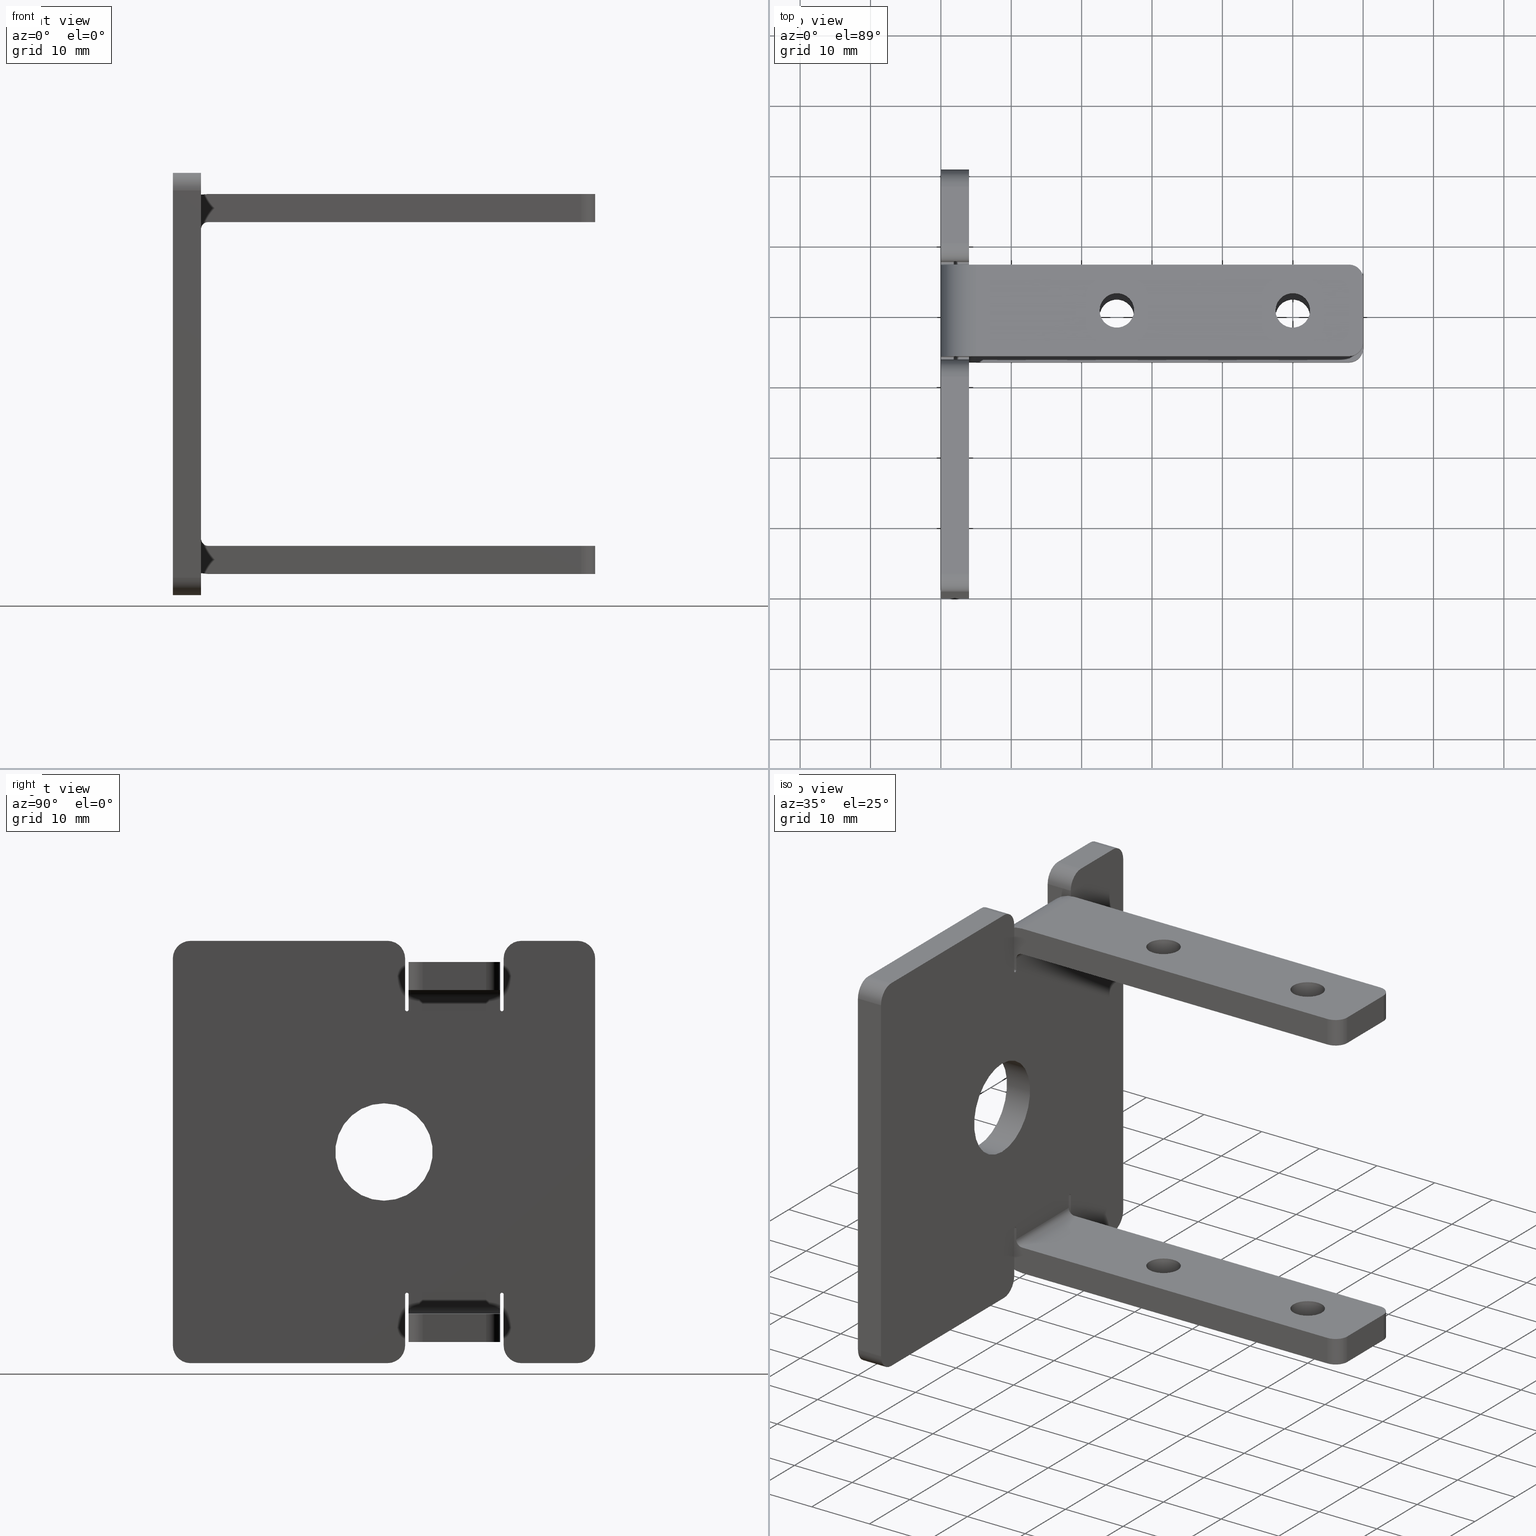
[diagram: canonical four-view strip — front | top / right | iso, engineering-drawing reading convention]
A machine part, canonical four-view strip (front | top / right | iso — engineering-drawing reading convention). The complete STEP part file that produces these views, byte-faithful:
ISO-10303-21;
HEADER;
/* Generated by software containing ST-Developer
 * from STEP Tools, Inc. (www.steptools.com) 
 */

FILE_DESCRIPTION(
/* description */ ('ACC.PIEDE 60x60x60 ACCIAIO INOX M16'),
/* implementation_level */ '2;1');

FILE_NAME(
/* name */ 
'Q:\\Catalogo\\2_Accessori Dierre\\Per Download Web e catalogo cartace
o\\CATALOGO PIEDI E SOSTEGNI\\PAGINA 46\\DPDAD0000043.stp',
/* time_stamp */ '2019-10-28T11:11:11+01:00',
/* author */ ('fzagni'),
/* organization */ (''),
/* preprocessor_version */ 'ST-DEVELOPER v17.2',
/* originating_system */ 'Autodesk Inventor 2019',
/* authorisation */ '');

FILE_SCHEMA (('AUTOMOTIVE_DESIGN { 1 0 10303 214 3 1 1 }'));
ENDSEC;

DATA;
#10=MECHANICAL_DESIGN_GEOMETRIC_PRESENTATION_REPRESENTATION('',(#13),#1762);
#11=SHAPE_REPRESENTATION_RELATIONSHIP('SRR','None',#1769,#12);
#12=ADVANCED_BREP_SHAPE_REPRESENTATION('',(#14),#1761);
#13=STYLED_ITEM('',(#1778),#14);
#14=MANIFOLD_SOLID_BREP('Solido2',#1025);
#15=FACE_BOUND('',#113,.T.);
#16=FACE_BOUND('',#117,.T.);
#17=FACE_BOUND('',#129,.T.);
#18=FACE_BOUND('',#130,.T.);
#19=FACE_BOUND('',#136,.T.);
#20=FACE_BOUND('',#137,.T.);
#21=FACE_BOUND('',#145,.T.);
#22=FACE_BOUND('',#146,.T.);
#23=FACE_BOUND('',#157,.T.);
#24=FACE_BOUND('',#158,.T.);
#25=PLANE('',#1048);
#26=PLANE('',#1049);
#27=PLANE('',#1065);
#28=PLANE('',#1066);
#29=PLANE('',#1093);
#30=PLANE('',#1095);
#31=PLANE('',#1099);
#32=PLANE('',#1100);
#33=PLANE('',#1104);
#34=PLANE('',#1108);
#35=PLANE('',#1109);
#36=PLANE('',#1113);
#37=PLANE('',#1117);
#38=PLANE('',#1119);
#39=PLANE('',#1121);
#40=PLANE('',#1122);
#41=PLANE('',#1125);
#42=PLANE('',#1126);
#43=PLANE('',#1131);
#44=PLANE('',#1133);
#45=PLANE('',#1135);
#46=PLANE('',#1136);
#47=PLANE('',#1139);
#48=PLANE('',#1140);
#49=PLANE('',#1142);
#50=PLANE('',#1143);
#51=PLANE('',#1144);
#52=PLANE('',#1147);
#53=PLANE('',#1150);
#54=PLANE('',#1152);
#55=FACE_OUTER_BOUND('',#110,.T.);
#56=FACE_OUTER_BOUND('',#111,.T.);
#57=FACE_OUTER_BOUND('',#112,.T.);
#58=FACE_OUTER_BOUND('',#114,.T.);
#59=FACE_OUTER_BOUND('',#115,.T.);
#60=FACE_OUTER_BOUND('',#116,.T.);
#61=FACE_OUTER_BOUND('',#118,.T.);
#62=FACE_OUTER_BOUND('',#119,.T.);
#63=FACE_OUTER_BOUND('',#120,.T.);
#64=FACE_OUTER_BOUND('',#121,.T.);
#65=FACE_OUTER_BOUND('',#122,.T.);
#66=FACE_OUTER_BOUND('',#123,.T.);
#67=FACE_OUTER_BOUND('',#124,.T.);
#68=FACE_OUTER_BOUND('',#125,.T.);
#69=FACE_OUTER_BOUND('',#126,.T.);
#70=FACE_OUTER_BOUND('',#127,.T.);
#71=FACE_OUTER_BOUND('',#128,.T.);
#72=FACE_OUTER_BOUND('',#131,.T.);
#73=FACE_OUTER_BOUND('',#132,.T.);
#74=FACE_OUTER_BOUND('',#133,.T.);
#75=FACE_OUTER_BOUND('',#134,.T.);
#76=FACE_OUTER_BOUND('',#135,.T.);
#77=FACE_OUTER_BOUND('',#138,.T.);
#78=FACE_OUTER_BOUND('',#139,.T.);
#79=FACE_OUTER_BOUND('',#140,.T.);
#80=FACE_OUTER_BOUND('',#141,.T.);
#81=FACE_OUTER_BOUND('',#142,.T.);
#82=FACE_OUTER_BOUND('',#143,.T.);
#83=FACE_OUTER_BOUND('',#144,.T.);
#84=FACE_OUTER_BOUND('',#147,.T.);
#85=FACE_OUTER_BOUND('',#148,.T.);
#86=FACE_OUTER_BOUND('',#149,.T.);
#87=FACE_OUTER_BOUND('',#150,.T.);
#88=FACE_OUTER_BOUND('',#151,.T.);
#89=FACE_OUTER_BOUND('',#152,.T.);
#90=FACE_OUTER_BOUND('',#153,.T.);
#91=FACE_OUTER_BOUND('',#154,.T.);
#92=FACE_OUTER_BOUND('',#155,.T.);
#93=FACE_OUTER_BOUND('',#156,.T.);
#94=FACE_OUTER_BOUND('',#159,.T.);
#95=FACE_OUTER_BOUND('',#160,.T.);
#96=FACE_OUTER_BOUND('',#161,.T.);
#97=FACE_OUTER_BOUND('',#162,.T.);
#98=FACE_OUTER_BOUND('',#163,.T.);
#99=FACE_OUTER_BOUND('',#164,.T.);
#100=FACE_OUTER_BOUND('',#165,.T.);
#101=FACE_OUTER_BOUND('',#166,.T.);
#102=FACE_OUTER_BOUND('',#167,.T.);
#103=FACE_OUTER_BOUND('',#168,.T.);
#104=FACE_OUTER_BOUND('',#169,.T.);
#105=FACE_OUTER_BOUND('',#170,.T.);
#106=FACE_OUTER_BOUND('',#171,.T.);
#107=FACE_OUTER_BOUND('',#172,.T.);
#108=FACE_OUTER_BOUND('',#173,.T.);
#109=FACE_OUTER_BOUND('',#174,.T.);
#110=EDGE_LOOP('',(#653,#654,#655,#656));
#111=EDGE_LOOP('',(#657,#658,#659,#660));
#112=EDGE_LOOP('',(#661,#662,#663,#664,#665,#666,#667,#668,#669,#670,#671,
#672,#673,#674,#675,#676,#677,#678,#679,#680,#681,#682,#683,#684,#685,#686,
#687,#688));
#113=EDGE_LOOP('',(#689,#690));
#114=EDGE_LOOP('',(#691,#692,#693,#694));
#115=EDGE_LOOP('',(#695,#696,#697,#698));
#116=EDGE_LOOP('',(#699,#700,#701,#702,#703,#704,#705,#706,#707,#708,#709,
#710,#711,#712,#713,#714,#715,#716,#717,#718,#719,#720,#721,#722,#723,#724,
#725,#726));
#117=EDGE_LOOP('',(#727));
#118=EDGE_LOOP('',(#728,#729,#730,#731));
#119=EDGE_LOOP('',(#732,#733,#734,#735,#736));
#120=EDGE_LOOP('',(#737,#738,#739,#740));
#121=EDGE_LOOP('',(#741,#742,#743,#744,#745));
#122=EDGE_LOOP('',(#746,#747,#748,#749));
#123=EDGE_LOOP('',(#750,#751,#752,#753));
#124=EDGE_LOOP('',(#754,#755,#756,#757));
#125=EDGE_LOOP('',(#758,#759,#760,#761));
#126=EDGE_LOOP('',(#762,#763,#764,#765));
#127=EDGE_LOOP('',(#766,#767,#768,#769));
#128=EDGE_LOOP('',(#770,#771,#772,#773,#774,#775));
#129=EDGE_LOOP('',(#776));
#130=EDGE_LOOP('',(#777));
#131=EDGE_LOOP('',(#778,#779,#780,#781));
#132=EDGE_LOOP('',(#782,#783,#784,#785));
#133=EDGE_LOOP('',(#786,#787,#788,#789));
#134=EDGE_LOOP('',(#790,#791,#792,#793));
#135=EDGE_LOOP('',(#794,#795,#796,#797,#798,#799));
#136=EDGE_LOOP('',(#800));
#137=EDGE_LOOP('',(#801));
#138=EDGE_LOOP('',(#802,#803,#804,#805));
#139=EDGE_LOOP('',(#806,#807,#808,#809));
#140=EDGE_LOOP('',(#810,#811,#812,#813));
#141=EDGE_LOOP('',(#814,#815,#816,#817));
#142=EDGE_LOOP('',(#818,#819,#820,#821));
#143=EDGE_LOOP('',(#822,#823,#824,#825));
#144=EDGE_LOOP('',(#826,#827,#828,#829,#830,#831));
#145=EDGE_LOOP('',(#832,#833));
#146=EDGE_LOOP('',(#834,#835));
#147=EDGE_LOOP('',(#836,#837,#838,#839));
#148=EDGE_LOOP('',(#840,#841,#842,#843));
#149=EDGE_LOOP('',(#844,#845,#846,#847));
#150=EDGE_LOOP('',(#848,#849,#850,#851));
#151=EDGE_LOOP('',(#852,#853,#854,#855));
#152=EDGE_LOOP('',(#856,#857,#858,#859));
#153=EDGE_LOOP('',(#860,#861,#862,#863));
#154=EDGE_LOOP('',(#864,#865,#866,#867));
#155=EDGE_LOOP('',(#868,#869,#870,#871));
#156=EDGE_LOOP('',(#872,#873,#874,#875,#876,#877));
#157=EDGE_LOOP('',(#878));
#158=EDGE_LOOP('',(#879));
#159=EDGE_LOOP('',(#880,#881,#882,#883));
#160=EDGE_LOOP('',(#884,#885,#886,#887));
#161=EDGE_LOOP('',(#888,#889,#890,#891));
#162=EDGE_LOOP('',(#892,#893,#894,#895));
#163=EDGE_LOOP('',(#896,#897,#898,#899));
#164=EDGE_LOOP('',(#900,#901,#902,#903));
#165=EDGE_LOOP('',(#904,#905,#906,#907));
#166=EDGE_LOOP('',(#908,#909,#910,#911));
#167=EDGE_LOOP('',(#912,#913,#914,#915,#916));
#168=EDGE_LOOP('',(#917,#918,#919,#920));
#169=EDGE_LOOP('',(#921,#922,#923,#924));
#170=EDGE_LOOP('',(#925,#926,#927,#928));
#171=EDGE_LOOP('',(#929,#930,#931,#932));
#172=EDGE_LOOP('',(#933,#934,#935,#936));
#173=EDGE_LOOP('',(#937,#938,#939,#940));
#174=EDGE_LOOP('',(#941,#942,#943,#944));
#175=LINE('',#1470,#268);
#176=LINE('',#1473,#269);
#177=LINE('',#1476,#270);
#178=LINE('',#1478,#271);
#179=LINE('',#1479,#272);
#180=LINE('',#1482,#273);
#181=LINE('',#1486,#274);
#182=LINE('',#1488,#275);
#183=LINE('',#1490,#276);
#184=LINE('',#1494,#277);
#185=LINE('',#1498,#278);
#186=LINE('',#1502,#279);
#187=LINE('',#1506,#280);
#188=LINE('',#1510,#281);
#189=LINE('',#1514,#282);
#190=LINE('',#1516,#283);
#191=LINE('',#1518,#284);
#192=LINE('',#1522,#285);
#193=LINE('',#1526,#286);
#194=LINE('',#1530,#287);
#195=LINE('',#1540,#288);
#196=LINE('',#1541,#289);
#197=LINE('',#1544,#290);
#198=LINE('',#1545,#291);
#199=LINE('',#1550,#292);
#200=LINE('',#1553,#293);
#201=LINE('',#1557,#294);
#202=LINE('',#1559,#295);
#203=LINE('',#1561,#296);
#204=LINE('',#1565,#297);
#205=LINE('',#1569,#298);
#206=LINE('',#1573,#299);
#207=LINE('',#1577,#300);
#208=LINE('',#1581,#301);
#209=LINE('',#1585,#302);
#210=LINE('',#1587,#303);
#211=LINE('',#1589,#304);
#212=LINE('',#1592,#305);
#213=LINE('',#1599,#306);
#214=LINE('',#1607,#307);
#215=LINE('',#1613,#308);
#216=LINE('',#1621,#309);
#217=LINE('',#1624,#310);
#218=LINE('',#1625,#311);
#219=LINE('',#1627,#312);
#220=LINE('',#1629,#313);
#221=LINE('',#1630,#314);
#222=LINE('',#1632,#315);
#223=LINE('',#1638,#316);
#224=LINE('',#1641,#317);
#225=LINE('',#1644,#318);
#226=LINE('',#1646,#319);
#227=LINE('',#1647,#320);
#228=LINE('',#1650,#321);
#229=LINE('',#1654,#322);
#230=LINE('',#1655,#323);
#231=LINE('',#1660,#324);
#232=LINE('',#1661,#325);
#233=LINE('',#1664,#326);
#234=LINE('',#1665,#327);
#235=LINE('',#1671,#328);
#236=LINE('',#1674,#329);
#237=LINE('',#1677,#330);
#238=LINE('',#1679,#331);
#239=LINE('',#1680,#332);
#240=LINE('',#1683,#333);
#241=LINE('',#1687,#334);
#242=LINE('',#1688,#335);
#243=LINE('',#1693,#336);
#244=LINE('',#1694,#337);
#245=LINE('',#1697,#338);
#246=LINE('',#1698,#339);
#247=LINE('',#1700,#340);
#248=LINE('',#1705,#341);
#249=LINE('',#1707,#342);
#250=LINE('',#1710,#343);
#251=LINE('',#1714,#344);
#252=LINE('',#1715,#345);
#253=LINE('',#1718,#346);
#254=LINE('',#1721,#347);
#255=LINE('',#1726,#348);
#256=LINE('',#1728,#349);
#257=LINE('',#1731,#350);
#258=LINE('',#1735,#351);
#259=LINE('',#1738,#352);
#260=LINE('',#1740,#353);
#261=LINE('',#1744,#354);
#262=LINE('',#1746,#355);
#263=LINE('',#1748,#356);
#264=LINE('',#1750,#357);
#265=LINE('',#1753,#358);
#266=LINE('',#1754,#359);
#267=LINE('',#1757,#360);
#268=VECTOR('',#1159,10.);
#269=VECTOR('',#1162,10.);
#270=VECTOR('',#1165,10.);
#271=VECTOR('',#1166,10.);
#272=VECTOR('',#1167,10.);
#273=VECTOR('',#1170,10.);
#274=VECTOR('',#1173,10.);
#275=VECTOR('',#1174,10.);
#276=VECTOR('',#1175,10.);
#277=VECTOR('',#1178,10.);
#278=VECTOR('',#1181,10.);
#279=VECTOR('',#1184,10.);
#280=VECTOR('',#1187,10.);
#281=VECTOR('',#1190,10.);
#282=VECTOR('',#1193,10.);
#283=VECTOR('',#1194,10.);
#284=VECTOR('',#1195,10.);
#285=VECTOR('',#1198,10.);
#286=VECTOR('',#1201,10.);
#287=VECTOR('',#1204,10.);
#288=VECTOR('',#1215,10.);
#289=VECTOR('',#1216,10.);
#290=VECTOR('',#1219,10.);
#291=VECTOR('',#1220,10.);
#292=VECTOR('',#1225,10.);
#293=VECTOR('',#1228,10.);
#294=VECTOR('',#1231,10.);
#295=VECTOR('',#1232,10.);
#296=VECTOR('',#1233,10.);
#297=VECTOR('',#1236,10.);
#298=VECTOR('',#1239,10.);
#299=VECTOR('',#1242,10.);
#300=VECTOR('',#1245,10.);
#301=VECTOR('',#1248,10.);
#302=VECTOR('',#1251,10.);
#303=VECTOR('',#1252,10.);
#304=VECTOR('',#1253,10.);
#305=VECTOR('',#1256,10.);
#306=VECTOR('',#1263,2.4585);
#307=VECTOR('',#1272,2.4585);
#308=VECTOR('',#1279,2.4585);
#309=VECTOR('',#1288,2.4585);
#310=VECTOR('',#1293,10.);
#311=VECTOR('',#1294,10.);
#312=VECTOR('',#1297,10.);
#313=VECTOR('',#1300,10.);
#314=VECTOR('',#1301,10.);
#315=VECTOR('',#1304,10.);
#316=VECTOR('',#1309,10.);
#317=VECTOR('',#1312,10.);
#318=VECTOR('',#1315,2.76);
#319=VECTOR('',#1316,10.);
#320=VECTOR('',#1317,10.);
#321=VECTOR('',#1320,10.);
#322=VECTOR('',#1323,2.76);
#323=VECTOR('',#1324,10.);
#324=VECTOR('',#1329,10.);
#325=VECTOR('',#1330,10.);
#326=VECTOR('',#1333,2.76);
#327=VECTOR('',#1334,10.);
#328=VECTOR('',#1339,10.);
#329=VECTOR('',#1342,10.);
#330=VECTOR('',#1345,2.76);
#331=VECTOR('',#1346,10.);
#332=VECTOR('',#1347,10.);
#333=VECTOR('',#1350,10.);
#334=VECTOR('',#1353,2.76);
#335=VECTOR('',#1354,10.);
#336=VECTOR('',#1359,10.);
#337=VECTOR('',#1360,10.);
#338=VECTOR('',#1363,2.76);
#339=VECTOR('',#1364,10.);
#340=VECTOR('',#1367,10.);
#341=VECTOR('',#1376,10.);
#342=VECTOR('',#1379,10.);
#343=VECTOR('',#1384,10.);
#344=VECTOR('',#1391,10.);
#345=VECTOR('',#1392,10.);
#346=VECTOR('',#1397,10.);
#347=VECTOR('',#1402,10.);
#348=VECTOR('',#1411,10.);
#349=VECTOR('',#1414,10.);
#350=VECTOR('',#1419,10.);
#351=VECTOR('',#1426,10.);
#352=VECTOR('',#1431,10.);
#353=VECTOR('',#1434,10.);
#354=VECTOR('',#1441,10.);
#355=VECTOR('',#1444,6.9175);
#356=VECTOR('',#1447,10.);
#357=VECTOR('',#1450,10.);
#358=VECTOR('',#1455,10.);
#359=VECTOR('',#1456,10.);
#360=VECTOR('',#1461,10.);
#361=CIRCLE('',#1046,2.5);
#362=CIRCLE('',#1047,2.5);
#363=CIRCLE('',#1050,0.249999999999999);
#364=CIRCLE('',#1051,0.25);
#365=CIRCLE('',#1052,2.5);
#366=CIRCLE('',#1053,2.5);
#367=CIRCLE('',#1054,2.5);
#368=CIRCLE('',#1055,2.5);
#369=CIRCLE('',#1056,0.25);
#370=CIRCLE('',#1057,0.250000000000001);
#371=CIRCLE('',#1058,2.5);
#372=CIRCLE('',#1059,2.5);
#373=CIRCLE('',#1060,2.5);
#374=CIRCLE('',#1061,6.9175);
#375=CIRCLE('',#1062,6.9175);
#376=CIRCLE('',#1064,2.5);
#377=CIRCLE('',#1067,2.5);
#378=CIRCLE('',#1068,2.5);
#379=CIRCLE('',#1069,0.250000000000001);
#380=CIRCLE('',#1070,0.25);
#381=CIRCLE('',#1071,2.5);
#382=CIRCLE('',#1072,2.5);
#383=CIRCLE('',#1073,2.5);
#384=CIRCLE('',#1074,2.5);
#385=CIRCLE('',#1075,0.25);
#386=CIRCLE('',#1076,0.249999999999999);
#387=CIRCLE('',#1077,6.9175);
#388=CIRCLE('',#1079,2.4585);
#389=CIRCLE('',#1080,2.4585);
#390=CIRCLE('',#1082,2.4585);
#391=CIRCLE('',#1083,2.4585);
#392=CIRCLE('',#1084,2.4585);
#393=CIRCLE('',#1086,2.4585);
#394=CIRCLE('',#1087,2.4585);
#395=CIRCLE('',#1089,2.4585);
#396=CIRCLE('',#1090,2.4585);
#397=CIRCLE('',#1091,2.4585);
#398=CIRCLE('',#1097,2.);
#399=CIRCLE('',#1098,2.);
#400=CIRCLE('',#1101,2.);
#401=CIRCLE('',#1103,2.);
#402=CIRCLE('',#1106,2.);
#403=CIRCLE('',#1107,2.);
#404=CIRCLE('',#1110,2.);
#405=CIRCLE('',#1112,2.);
#406=CIRCLE('',#1115,5.);
#407=CIRCLE('',#1116,5.);
#408=CIRCLE('',#1118,1.);
#409=CIRCLE('',#1120,1.);
#410=CIRCLE('',#1129,5.);
#411=CIRCLE('',#1130,4.99999999999999);
#412=CIRCLE('',#1132,1.);
#413=CIRCLE('',#1134,0.999999999999992);
#414=VERTEX_POINT('',#1466);
#415=VERTEX_POINT('',#1467);
#416=VERTEX_POINT('',#1469);
#417=VERTEX_POINT('',#1471);
#418=VERTEX_POINT('',#1475);
#419=VERTEX_POINT('',#1477);
#420=VERTEX_POINT('',#1481);
#421=VERTEX_POINT('',#1483);
#422=VERTEX_POINT('',#1485);
#423=VERTEX_POINT('',#1487);
#424=VERTEX_POINT('',#1489);
#425=VERTEX_POINT('',#1491);
#426=VERTEX_POINT('',#1493);
#427=VERTEX_POINT('',#1495);
#428=VERTEX_POINT('',#1497);
#429=VERTEX_POINT('',#1499);
#430=VERTEX_POINT('',#1501);
#431=VERTEX_POINT('',#1503);
#432=VERTEX_POINT('',#1505);
#433=VERTEX_POINT('',#1507);
#434=VERTEX_POINT('',#1509);
#435=VERTEX_POINT('',#1511);
#436=VERTEX_POINT('',#1513);
#437=VERTEX_POINT('',#1515);
#438=VERTEX_POINT('',#1517);
#439=VERTEX_POINT('',#1519);
#440=VERTEX_POINT('',#1521);
#441=VERTEX_POINT('',#1523);
#442=VERTEX_POINT('',#1525);
#443=VERTEX_POINT('',#1527);
#444=VERTEX_POINT('',#1529);
#445=VERTEX_POINT('',#1532);
#446=VERTEX_POINT('',#1533);
#447=VERTEX_POINT('',#1537);
#448=VERTEX_POINT('',#1538);
#449=VERTEX_POINT('',#1543);
#450=VERTEX_POINT('',#1547);
#451=VERTEX_POINT('',#1549);
#452=VERTEX_POINT('',#1552);
#453=VERTEX_POINT('',#1554);
#454=VERTEX_POINT('',#1556);
#455=VERTEX_POINT('',#1558);
#456=VERTEX_POINT('',#1560);
#457=VERTEX_POINT('',#1562);
#458=VERTEX_POINT('',#1564);
#459=VERTEX_POINT('',#1566);
#460=VERTEX_POINT('',#1568);
#461=VERTEX_POINT('',#1570);
#462=VERTEX_POINT('',#1572);
#463=VERTEX_POINT('',#1574);
#464=VERTEX_POINT('',#1576);
#465=VERTEX_POINT('',#1578);
#466=VERTEX_POINT('',#1580);
#467=VERTEX_POINT('',#1582);
#468=VERTEX_POINT('',#1584);
#469=VERTEX_POINT('',#1586);
#470=VERTEX_POINT('',#1588);
#471=VERTEX_POINT('',#1590);
#472=VERTEX_POINT('',#1593);
#473=VERTEX_POINT('',#1596);
#474=VERTEX_POINT('',#1598);
#475=VERTEX_POINT('',#1602);
#476=VERTEX_POINT('',#1603);
#477=VERTEX_POINT('',#1606);
#478=VERTEX_POINT('',#1610);
#479=VERTEX_POINT('',#1612);
#480=VERTEX_POINT('',#1616);
#481=VERTEX_POINT('',#1617);
#482=VERTEX_POINT('',#1620);
#483=VERTEX_POINT('',#1634);
#484=VERTEX_POINT('',#1635);
#485=VERTEX_POINT('',#1637);
#486=VERTEX_POINT('',#1639);
#487=VERTEX_POINT('',#1643);
#488=VERTEX_POINT('',#1645);
#489=VERTEX_POINT('',#1649);
#490=VERTEX_POINT('',#1651);
#491=VERTEX_POINT('',#1653);
#492=VERTEX_POINT('',#1657);
#493=VERTEX_POINT('',#1658);
#494=VERTEX_POINT('',#1663);
#495=VERTEX_POINT('',#1667);
#496=VERTEX_POINT('',#1668);
#497=VERTEX_POINT('',#1670);
#498=VERTEX_POINT('',#1672);
#499=VERTEX_POINT('',#1676);
#500=VERTEX_POINT('',#1678);
#501=VERTEX_POINT('',#1682);
#502=VERTEX_POINT('',#1684);
#503=VERTEX_POINT('',#1686);
#504=VERTEX_POINT('',#1690);
#505=VERTEX_POINT('',#1691);
#506=VERTEX_POINT('',#1696);
#507=EDGE_CURVE('',#414,#415,#361,.T.);
#508=EDGE_CURVE('',#415,#416,#175,.T.);
#509=EDGE_CURVE('',#416,#417,#362,.T.);
#510=EDGE_CURVE('',#417,#414,#176,.T.);
#511=EDGE_CURVE('',#415,#418,#177,.T.);
#512=EDGE_CURVE('',#419,#418,#178,.T.);
#513=EDGE_CURVE('',#419,#416,#179,.T.);
#514=EDGE_CURVE('',#414,#420,#180,.T.);
#515=EDGE_CURVE('',#420,#421,#363,.T.);
#516=EDGE_CURVE('',#421,#422,#181,.T.);
#517=EDGE_CURVE('',#422,#423,#182,.T.);
#518=EDGE_CURVE('',#423,#424,#183,.T.);
#519=EDGE_CURVE('',#424,#425,#364,.T.);
#520=EDGE_CURVE('',#425,#426,#184,.T.);
#521=EDGE_CURVE('',#427,#426,#365,.T.);
#522=EDGE_CURVE('',#428,#427,#185,.T.);
#523=EDGE_CURVE('',#429,#428,#366,.T.);
#524=EDGE_CURVE('',#430,#429,#186,.T.);
#525=EDGE_CURVE('',#431,#430,#367,.T.);
#526=EDGE_CURVE('',#432,#431,#187,.T.);
#527=EDGE_CURVE('',#433,#432,#368,.T.);
#528=EDGE_CURVE('',#433,#434,#188,.T.);
#529=EDGE_CURVE('',#434,#435,#369,.T.);
#530=EDGE_CURVE('',#435,#436,#189,.T.);
#531=EDGE_CURVE('',#436,#437,#190,.T.);
#532=EDGE_CURVE('',#437,#438,#191,.T.);
#533=EDGE_CURVE('',#438,#439,#370,.T.);
#534=EDGE_CURVE('',#439,#440,#192,.T.);
#535=EDGE_CURVE('',#441,#440,#371,.T.);
#536=EDGE_CURVE('',#442,#441,#193,.T.);
#537=EDGE_CURVE('',#443,#442,#372,.T.);
#538=EDGE_CURVE('',#444,#443,#194,.T.);
#539=EDGE_CURVE('',#418,#444,#373,.T.);
#540=EDGE_CURVE('',#445,#446,#374,.T.);
#541=EDGE_CURVE('',#446,#445,#375,.T.);
#542=EDGE_CURVE('',#447,#448,#376,.T.);
#543=EDGE_CURVE('',#448,#441,#195,.T.);
#544=EDGE_CURVE('',#440,#447,#196,.T.);
#545=EDGE_CURVE('',#448,#449,#197,.T.);
#546=EDGE_CURVE('',#442,#449,#198,.T.);
#547=EDGE_CURVE('',#450,#419,#377,.T.);
#548=EDGE_CURVE('',#451,#450,#199,.T.);
#549=EDGE_CURVE('',#449,#451,#378,.T.);
#550=EDGE_CURVE('',#447,#452,#200,.T.);
#551=EDGE_CURVE('',#452,#453,#379,.T.);
#552=EDGE_CURVE('',#453,#454,#201,.T.);
#553=EDGE_CURVE('',#454,#455,#202,.T.);
#554=EDGE_CURVE('',#455,#456,#203,.T.);
#555=EDGE_CURVE('',#456,#457,#380,.T.);
#556=EDGE_CURVE('',#457,#458,#204,.T.);
#557=EDGE_CURVE('',#459,#458,#381,.T.);
#558=EDGE_CURVE('',#460,#459,#205,.T.);
#559=EDGE_CURVE('',#461,#460,#382,.T.);
#560=EDGE_CURVE('',#462,#461,#206,.T.);
#561=EDGE_CURVE('',#463,#462,#383,.T.);
#562=EDGE_CURVE('',#464,#463,#207,.T.);
#563=EDGE_CURVE('',#465,#464,#384,.T.);
#564=EDGE_CURVE('',#465,#466,#208,.T.);
#565=EDGE_CURVE('',#466,#467,#385,.T.);
#566=EDGE_CURVE('',#467,#468,#209,.T.);
#567=EDGE_CURVE('',#468,#469,#210,.T.);
#568=EDGE_CURVE('',#469,#470,#211,.T.);
#569=EDGE_CURVE('',#470,#471,#386,.T.);
#570=EDGE_CURVE('',#471,#417,#212,.T.);
#571=EDGE_CURVE('',#472,#472,#387,.T.);
#572=EDGE_CURVE('',#473,#473,#388,.T.);
#573=EDGE_CURVE('',#473,#474,#213,.T.);
#574=EDGE_CURVE('',#474,#474,#389,.T.);
#575=EDGE_CURVE('',#475,#476,#390,.T.);
#576=EDGE_CURVE('',#476,#475,#391,.T.);
#577=EDGE_CURVE('',#476,#477,#214,.T.);
#578=EDGE_CURVE('',#477,#477,#392,.T.);
#579=EDGE_CURVE('',#478,#478,#393,.T.);
#580=EDGE_CURVE('',#478,#479,#215,.T.);
#581=EDGE_CURVE('',#479,#479,#394,.T.);
#582=EDGE_CURVE('',#480,#481,#395,.T.);
#583=EDGE_CURVE('',#481,#480,#396,.T.);
#584=EDGE_CURVE('',#481,#482,#216,.T.);
#585=EDGE_CURVE('',#482,#482,#397,.T.);
#586=EDGE_CURVE('',#464,#427,#217,.T.);
#587=EDGE_CURVE('',#426,#465,#218,.T.);
#588=EDGE_CURVE('',#425,#466,#219,.T.);
#589=EDGE_CURVE('',#432,#459,#220,.T.);
#590=EDGE_CURVE('',#458,#433,#221,.T.);
#591=EDGE_CURVE('',#434,#457,#222,.T.);
#592=EDGE_CURVE('',#483,#484,#398,.T.);
#593=EDGE_CURVE('',#484,#485,#223,.T.);
#594=EDGE_CURVE('',#485,#486,#399,.T.);
#595=EDGE_CURVE('',#486,#483,#224,.T.);
#596=EDGE_CURVE('',#486,#487,#225,.T.);
#597=EDGE_CURVE('',#487,#488,#226,.T.);
#598=EDGE_CURVE('',#488,#483,#227,.T.);
#599=EDGE_CURVE('',#485,#489,#228,.T.);
#600=EDGE_CURVE('',#490,#489,#400,.T.);
#601=EDGE_CURVE('',#490,#491,#229,.T.);
#602=EDGE_CURVE('',#491,#487,#230,.T.);
#603=EDGE_CURVE('',#492,#493,#401,.T.);
#604=EDGE_CURVE('',#493,#490,#231,.T.);
#605=EDGE_CURVE('',#489,#492,#232,.T.);
#606=EDGE_CURVE('',#493,#494,#233,.T.);
#607=EDGE_CURVE('',#494,#491,#234,.T.);
#608=EDGE_CURVE('',#495,#496,#402,.T.);
#609=EDGE_CURVE('',#496,#497,#235,.T.);
#610=EDGE_CURVE('',#497,#498,#403,.T.);
#611=EDGE_CURVE('',#498,#495,#236,.T.);
#612=EDGE_CURVE('',#498,#499,#237,.T.);
#613=EDGE_CURVE('',#499,#500,#238,.T.);
#614=EDGE_CURVE('',#500,#495,#239,.T.);
#615=EDGE_CURVE('',#497,#501,#240,.T.);
#616=EDGE_CURVE('',#502,#501,#404,.T.);
#617=EDGE_CURVE('',#502,#503,#241,.T.);
#618=EDGE_CURVE('',#503,#499,#242,.T.);
#619=EDGE_CURVE('',#504,#505,#405,.T.);
#620=EDGE_CURVE('',#505,#502,#243,.T.);
#621=EDGE_CURVE('',#501,#504,#244,.T.);
#622=EDGE_CURVE('',#505,#506,#245,.T.);
#623=EDGE_CURVE('',#506,#503,#246,.T.);
#624=EDGE_CURVE('',#488,#494,#247,.T.);
#625=EDGE_CURVE('',#455,#488,#406,.T.);
#626=EDGE_CURVE('',#494,#454,#407,.T.);
#627=EDGE_CURVE('',#487,#436,#408,.T.);
#628=EDGE_CURVE('',#436,#455,#248,.T.);
#629=EDGE_CURVE('',#454,#437,#249,.T.);
#630=EDGE_CURVE('',#491,#437,#409,.T.);
#631=EDGE_CURVE('',#484,#492,#250,.T.);
#632=EDGE_CURVE('',#439,#452,#251,.T.);
#633=EDGE_CURVE('',#438,#453,#252,.T.);
#634=EDGE_CURVE('',#435,#456,#253,.T.);
#635=EDGE_CURVE('',#500,#506,#254,.T.);
#636=EDGE_CURVE('',#469,#500,#410,.T.);
#637=EDGE_CURVE('',#506,#468,#411,.T.);
#638=EDGE_CURVE('',#499,#422,#412,.T.);
#639=EDGE_CURVE('',#422,#469,#255,.T.);
#640=EDGE_CURVE('',#468,#423,#256,.T.);
#641=EDGE_CURVE('',#503,#423,#413,.T.);
#642=EDGE_CURVE('',#496,#504,#257,.T.);
#643=EDGE_CURVE('',#424,#467,#258,.T.);
#644=EDGE_CURVE('',#421,#470,#259,.T.);
#645=EDGE_CURVE('',#420,#471,#260,.T.);
#646=EDGE_CURVE('',#460,#431,#261,.T.);
#647=EDGE_CURVE('',#446,#472,#262,.T.);
#648=EDGE_CURVE('',#444,#450,#263,.T.);
#649=EDGE_CURVE('',#451,#443,#264,.T.);
#650=EDGE_CURVE('',#428,#463,#265,.T.);
#651=EDGE_CURVE('',#462,#429,#266,.T.);
#652=EDGE_CURVE('',#430,#461,#267,.T.);
#653=ORIENTED_EDGE('',*,*,#507,.T.);
#654=ORIENTED_EDGE('',*,*,#508,.T.);
#655=ORIENTED_EDGE('',*,*,#509,.T.);
#656=ORIENTED_EDGE('',*,*,#510,.T.);
#657=ORIENTED_EDGE('',*,*,#508,.F.);
#658=ORIENTED_EDGE('',*,*,#511,.T.);
#659=ORIENTED_EDGE('',*,*,#512,.F.);
#660=ORIENTED_EDGE('',*,*,#513,.T.);
#661=ORIENTED_EDGE('',*,*,#507,.F.);
#662=ORIENTED_EDGE('',*,*,#514,.T.);
#663=ORIENTED_EDGE('',*,*,#515,.T.);
#664=ORIENTED_EDGE('',*,*,#516,.T.);
#665=ORIENTED_EDGE('',*,*,#517,.T.);
#666=ORIENTED_EDGE('',*,*,#518,.T.);
#667=ORIENTED_EDGE('',*,*,#519,.T.);
#668=ORIENTED_EDGE('',*,*,#520,.T.);
#669=ORIENTED_EDGE('',*,*,#521,.F.);
#670=ORIENTED_EDGE('',*,*,#522,.F.);
#671=ORIENTED_EDGE('',*,*,#523,.F.);
#672=ORIENTED_EDGE('',*,*,#524,.F.);
#673=ORIENTED_EDGE('',*,*,#525,.F.);
#674=ORIENTED_EDGE('',*,*,#526,.F.);
#675=ORIENTED_EDGE('',*,*,#527,.F.);
#676=ORIENTED_EDGE('',*,*,#528,.T.);
#677=ORIENTED_EDGE('',*,*,#529,.T.);
#678=ORIENTED_EDGE('',*,*,#530,.T.);
#679=ORIENTED_EDGE('',*,*,#531,.T.);
#680=ORIENTED_EDGE('',*,*,#532,.T.);
#681=ORIENTED_EDGE('',*,*,#533,.T.);
#682=ORIENTED_EDGE('',*,*,#534,.T.);
#683=ORIENTED_EDGE('',*,*,#535,.F.);
#684=ORIENTED_EDGE('',*,*,#536,.F.);
#685=ORIENTED_EDGE('',*,*,#537,.F.);
#686=ORIENTED_EDGE('',*,*,#538,.F.);
#687=ORIENTED_EDGE('',*,*,#539,.F.);
#688=ORIENTED_EDGE('',*,*,#511,.F.);
#689=ORIENTED_EDGE('',*,*,#540,.T.);
#690=ORIENTED_EDGE('',*,*,#541,.T.);
#691=ORIENTED_EDGE('',*,*,#542,.T.);
#692=ORIENTED_EDGE('',*,*,#543,.T.);
#693=ORIENTED_EDGE('',*,*,#535,.T.);
#694=ORIENTED_EDGE('',*,*,#544,.T.);
#695=ORIENTED_EDGE('',*,*,#543,.F.);
#696=ORIENTED_EDGE('',*,*,#545,.T.);
#697=ORIENTED_EDGE('',*,*,#546,.F.);
#698=ORIENTED_EDGE('',*,*,#536,.T.);
#699=ORIENTED_EDGE('',*,*,#509,.F.);
#700=ORIENTED_EDGE('',*,*,#513,.F.);
#701=ORIENTED_EDGE('',*,*,#547,.F.);
#702=ORIENTED_EDGE('',*,*,#548,.F.);
#703=ORIENTED_EDGE('',*,*,#549,.F.);
#704=ORIENTED_EDGE('',*,*,#545,.F.);
#705=ORIENTED_EDGE('',*,*,#542,.F.);
#706=ORIENTED_EDGE('',*,*,#550,.T.);
#707=ORIENTED_EDGE('',*,*,#551,.T.);
#708=ORIENTED_EDGE('',*,*,#552,.T.);
#709=ORIENTED_EDGE('',*,*,#553,.T.);
#710=ORIENTED_EDGE('',*,*,#554,.T.);
#711=ORIENTED_EDGE('',*,*,#555,.T.);
#712=ORIENTED_EDGE('',*,*,#556,.T.);
#713=ORIENTED_EDGE('',*,*,#557,.F.);
#714=ORIENTED_EDGE('',*,*,#558,.F.);
#715=ORIENTED_EDGE('',*,*,#559,.F.);
#716=ORIENTED_EDGE('',*,*,#560,.F.);
#717=ORIENTED_EDGE('',*,*,#561,.F.);
#718=ORIENTED_EDGE('',*,*,#562,.F.);
#719=ORIENTED_EDGE('',*,*,#563,.F.);
#720=ORIENTED_EDGE('',*,*,#564,.T.);
#721=ORIENTED_EDGE('',*,*,#565,.T.);
#722=ORIENTED_EDGE('',*,*,#566,.T.);
#723=ORIENTED_EDGE('',*,*,#567,.T.);
#724=ORIENTED_EDGE('',*,*,#568,.T.);
#725=ORIENTED_EDGE('',*,*,#569,.T.);
#726=ORIENTED_EDGE('',*,*,#570,.T.);
#727=ORIENTED_EDGE('',*,*,#571,.T.);
#728=ORIENTED_EDGE('',*,*,#572,.F.);
#729=ORIENTED_EDGE('',*,*,#573,.T.);
#730=ORIENTED_EDGE('',*,*,#574,.F.);
#731=ORIENTED_EDGE('',*,*,#573,.F.);
#732=ORIENTED_EDGE('',*,*,#575,.F.);
#733=ORIENTED_EDGE('',*,*,#576,.F.);
#734=ORIENTED_EDGE('',*,*,#577,.T.);
#735=ORIENTED_EDGE('',*,*,#578,.F.);
#736=ORIENTED_EDGE('',*,*,#577,.F.);
#737=ORIENTED_EDGE('',*,*,#579,.F.);
#738=ORIENTED_EDGE('',*,*,#580,.T.);
#739=ORIENTED_EDGE('',*,*,#581,.F.);
#740=ORIENTED_EDGE('',*,*,#580,.F.);
#741=ORIENTED_EDGE('',*,*,#582,.F.);
#742=ORIENTED_EDGE('',*,*,#583,.F.);
#743=ORIENTED_EDGE('',*,*,#584,.T.);
#744=ORIENTED_EDGE('',*,*,#585,.F.);
#745=ORIENTED_EDGE('',*,*,#584,.F.);
#746=ORIENTED_EDGE('',*,*,#563,.T.);
#747=ORIENTED_EDGE('',*,*,#586,.T.);
#748=ORIENTED_EDGE('',*,*,#521,.T.);
#749=ORIENTED_EDGE('',*,*,#587,.T.);
#750=ORIENTED_EDGE('',*,*,#587,.F.);
#751=ORIENTED_EDGE('',*,*,#520,.F.);
#752=ORIENTED_EDGE('',*,*,#588,.T.);
#753=ORIENTED_EDGE('',*,*,#564,.F.);
#754=ORIENTED_EDGE('',*,*,#527,.T.);
#755=ORIENTED_EDGE('',*,*,#589,.T.);
#756=ORIENTED_EDGE('',*,*,#557,.T.);
#757=ORIENTED_EDGE('',*,*,#590,.T.);
#758=ORIENTED_EDGE('',*,*,#590,.F.);
#759=ORIENTED_EDGE('',*,*,#556,.F.);
#760=ORIENTED_EDGE('',*,*,#591,.F.);
#761=ORIENTED_EDGE('',*,*,#528,.F.);
#762=ORIENTED_EDGE('',*,*,#592,.T.);
#763=ORIENTED_EDGE('',*,*,#593,.T.);
#764=ORIENTED_EDGE('',*,*,#594,.T.);
#765=ORIENTED_EDGE('',*,*,#595,.T.);
#766=ORIENTED_EDGE('',*,*,#595,.F.);
#767=ORIENTED_EDGE('',*,*,#596,.T.);
#768=ORIENTED_EDGE('',*,*,#597,.T.);
#769=ORIENTED_EDGE('',*,*,#598,.T.);
#770=ORIENTED_EDGE('',*,*,#594,.F.);
#771=ORIENTED_EDGE('',*,*,#599,.T.);
#772=ORIENTED_EDGE('',*,*,#600,.F.);
#773=ORIENTED_EDGE('',*,*,#601,.T.);
#774=ORIENTED_EDGE('',*,*,#602,.T.);
#775=ORIENTED_EDGE('',*,*,#596,.F.);
#776=ORIENTED_EDGE('',*,*,#578,.T.);
#777=ORIENTED_EDGE('',*,*,#585,.T.);
#778=ORIENTED_EDGE('',*,*,#603,.T.);
#779=ORIENTED_EDGE('',*,*,#604,.T.);
#780=ORIENTED_EDGE('',*,*,#600,.T.);
#781=ORIENTED_EDGE('',*,*,#605,.T.);
#782=ORIENTED_EDGE('',*,*,#604,.F.);
#783=ORIENTED_EDGE('',*,*,#606,.T.);
#784=ORIENTED_EDGE('',*,*,#607,.T.);
#785=ORIENTED_EDGE('',*,*,#601,.F.);
#786=ORIENTED_EDGE('',*,*,#608,.T.);
#787=ORIENTED_EDGE('',*,*,#609,.T.);
#788=ORIENTED_EDGE('',*,*,#610,.T.);
#789=ORIENTED_EDGE('',*,*,#611,.T.);
#790=ORIENTED_EDGE('',*,*,#611,.F.);
#791=ORIENTED_EDGE('',*,*,#612,.T.);
#792=ORIENTED_EDGE('',*,*,#613,.T.);
#793=ORIENTED_EDGE('',*,*,#614,.T.);
#794=ORIENTED_EDGE('',*,*,#610,.F.);
#795=ORIENTED_EDGE('',*,*,#615,.T.);
#796=ORIENTED_EDGE('',*,*,#616,.F.);
#797=ORIENTED_EDGE('',*,*,#617,.T.);
#798=ORIENTED_EDGE('',*,*,#618,.T.);
#799=ORIENTED_EDGE('',*,*,#612,.F.);
#800=ORIENTED_EDGE('',*,*,#572,.T.);
#801=ORIENTED_EDGE('',*,*,#579,.T.);
#802=ORIENTED_EDGE('',*,*,#619,.T.);
#803=ORIENTED_EDGE('',*,*,#620,.T.);
#804=ORIENTED_EDGE('',*,*,#616,.T.);
#805=ORIENTED_EDGE('',*,*,#621,.T.);
#806=ORIENTED_EDGE('',*,*,#620,.F.);
#807=ORIENTED_EDGE('',*,*,#622,.T.);
#808=ORIENTED_EDGE('',*,*,#623,.T.);
#809=ORIENTED_EDGE('',*,*,#617,.F.);
#810=ORIENTED_EDGE('',*,*,#624,.F.);
#811=ORIENTED_EDGE('',*,*,#625,.F.);
#812=ORIENTED_EDGE('',*,*,#553,.F.);
#813=ORIENTED_EDGE('',*,*,#626,.F.);
#814=ORIENTED_EDGE('',*,*,#597,.F.);
#815=ORIENTED_EDGE('',*,*,#627,.T.);
#816=ORIENTED_EDGE('',*,*,#628,.T.);
#817=ORIENTED_EDGE('',*,*,#625,.T.);
#818=ORIENTED_EDGE('',*,*,#607,.F.);
#819=ORIENTED_EDGE('',*,*,#626,.T.);
#820=ORIENTED_EDGE('',*,*,#629,.T.);
#821=ORIENTED_EDGE('',*,*,#630,.F.);
#822=ORIENTED_EDGE('',*,*,#593,.F.);
#823=ORIENTED_EDGE('',*,*,#631,.T.);
#824=ORIENTED_EDGE('',*,*,#605,.F.);
#825=ORIENTED_EDGE('',*,*,#599,.F.);
#826=ORIENTED_EDGE('',*,*,#592,.F.);
#827=ORIENTED_EDGE('',*,*,#598,.F.);
#828=ORIENTED_EDGE('',*,*,#624,.T.);
#829=ORIENTED_EDGE('',*,*,#606,.F.);
#830=ORIENTED_EDGE('',*,*,#603,.F.);
#831=ORIENTED_EDGE('',*,*,#631,.F.);
#832=ORIENTED_EDGE('',*,*,#575,.T.);
#833=ORIENTED_EDGE('',*,*,#576,.T.);
#834=ORIENTED_EDGE('',*,*,#582,.T.);
#835=ORIENTED_EDGE('',*,*,#583,.T.);
#836=ORIENTED_EDGE('',*,*,#602,.F.);
#837=ORIENTED_EDGE('',*,*,#630,.T.);
#838=ORIENTED_EDGE('',*,*,#531,.F.);
#839=ORIENTED_EDGE('',*,*,#627,.F.);
#840=ORIENTED_EDGE('',*,*,#551,.F.);
#841=ORIENTED_EDGE('',*,*,#632,.F.);
#842=ORIENTED_EDGE('',*,*,#533,.F.);
#843=ORIENTED_EDGE('',*,*,#633,.T.);
#844=ORIENTED_EDGE('',*,*,#552,.F.);
#845=ORIENTED_EDGE('',*,*,#633,.F.);
#846=ORIENTED_EDGE('',*,*,#532,.F.);
#847=ORIENTED_EDGE('',*,*,#629,.F.);
#848=ORIENTED_EDGE('',*,*,#554,.F.);
#849=ORIENTED_EDGE('',*,*,#628,.F.);
#850=ORIENTED_EDGE('',*,*,#530,.F.);
#851=ORIENTED_EDGE('',*,*,#634,.T.);
#852=ORIENTED_EDGE('',*,*,#555,.F.);
#853=ORIENTED_EDGE('',*,*,#634,.F.);
#854=ORIENTED_EDGE('',*,*,#529,.F.);
#855=ORIENTED_EDGE('',*,*,#591,.T.);
#856=ORIENTED_EDGE('',*,*,#635,.F.);
#857=ORIENTED_EDGE('',*,*,#636,.F.);
#858=ORIENTED_EDGE('',*,*,#567,.F.);
#859=ORIENTED_EDGE('',*,*,#637,.F.);
#860=ORIENTED_EDGE('',*,*,#613,.F.);
#861=ORIENTED_EDGE('',*,*,#638,.T.);
#862=ORIENTED_EDGE('',*,*,#639,.T.);
#863=ORIENTED_EDGE('',*,*,#636,.T.);
#864=ORIENTED_EDGE('',*,*,#623,.F.);
#865=ORIENTED_EDGE('',*,*,#637,.T.);
#866=ORIENTED_EDGE('',*,*,#640,.T.);
#867=ORIENTED_EDGE('',*,*,#641,.F.);
#868=ORIENTED_EDGE('',*,*,#609,.F.);
#869=ORIENTED_EDGE('',*,*,#642,.T.);
#870=ORIENTED_EDGE('',*,*,#621,.F.);
#871=ORIENTED_EDGE('',*,*,#615,.F.);
#872=ORIENTED_EDGE('',*,*,#608,.F.);
#873=ORIENTED_EDGE('',*,*,#614,.F.);
#874=ORIENTED_EDGE('',*,*,#635,.T.);
#875=ORIENTED_EDGE('',*,*,#622,.F.);
#876=ORIENTED_EDGE('',*,*,#619,.F.);
#877=ORIENTED_EDGE('',*,*,#642,.F.);
#878=ORIENTED_EDGE('',*,*,#574,.T.);
#879=ORIENTED_EDGE('',*,*,#581,.T.);
#880=ORIENTED_EDGE('',*,*,#618,.F.);
#881=ORIENTED_EDGE('',*,*,#641,.T.);
#882=ORIENTED_EDGE('',*,*,#517,.F.);
#883=ORIENTED_EDGE('',*,*,#638,.F.);
#884=ORIENTED_EDGE('',*,*,#565,.F.);
#885=ORIENTED_EDGE('',*,*,#588,.F.);
#886=ORIENTED_EDGE('',*,*,#519,.F.);
#887=ORIENTED_EDGE('',*,*,#643,.T.);
#888=ORIENTED_EDGE('',*,*,#566,.F.);
#889=ORIENTED_EDGE('',*,*,#643,.F.);
#890=ORIENTED_EDGE('',*,*,#518,.F.);
#891=ORIENTED_EDGE('',*,*,#640,.F.);
#892=ORIENTED_EDGE('',*,*,#568,.F.);
#893=ORIENTED_EDGE('',*,*,#639,.F.);
#894=ORIENTED_EDGE('',*,*,#516,.F.);
#895=ORIENTED_EDGE('',*,*,#644,.T.);
#896=ORIENTED_EDGE('',*,*,#569,.F.);
#897=ORIENTED_EDGE('',*,*,#644,.F.);
#898=ORIENTED_EDGE('',*,*,#515,.F.);
#899=ORIENTED_EDGE('',*,*,#645,.T.);
#900=ORIENTED_EDGE('',*,*,#510,.F.);
#901=ORIENTED_EDGE('',*,*,#570,.F.);
#902=ORIENTED_EDGE('',*,*,#645,.F.);
#903=ORIENTED_EDGE('',*,*,#514,.F.);
#904=ORIENTED_EDGE('',*,*,#544,.F.);
#905=ORIENTED_EDGE('',*,*,#534,.F.);
#906=ORIENTED_EDGE('',*,*,#632,.T.);
#907=ORIENTED_EDGE('',*,*,#550,.F.);
#908=ORIENTED_EDGE('',*,*,#589,.F.);
#909=ORIENTED_EDGE('',*,*,#526,.T.);
#910=ORIENTED_EDGE('',*,*,#646,.F.);
#911=ORIENTED_EDGE('',*,*,#558,.T.);
#912=ORIENTED_EDGE('',*,*,#540,.F.);
#913=ORIENTED_EDGE('',*,*,#541,.F.);
#914=ORIENTED_EDGE('',*,*,#647,.T.);
#915=ORIENTED_EDGE('',*,*,#571,.F.);
#916=ORIENTED_EDGE('',*,*,#647,.F.);
#917=ORIENTED_EDGE('',*,*,#539,.T.);
#918=ORIENTED_EDGE('',*,*,#648,.T.);
#919=ORIENTED_EDGE('',*,*,#547,.T.);
#920=ORIENTED_EDGE('',*,*,#512,.T.);
#921=ORIENTED_EDGE('',*,*,#648,.F.);
#922=ORIENTED_EDGE('',*,*,#538,.T.);
#923=ORIENTED_EDGE('',*,*,#649,.F.);
#924=ORIENTED_EDGE('',*,*,#548,.T.);
#925=ORIENTED_EDGE('',*,*,#537,.T.);
#926=ORIENTED_EDGE('',*,*,#546,.T.);
#927=ORIENTED_EDGE('',*,*,#549,.T.);
#928=ORIENTED_EDGE('',*,*,#649,.T.);
#929=ORIENTED_EDGE('',*,*,#523,.T.);
#930=ORIENTED_EDGE('',*,*,#650,.T.);
#931=ORIENTED_EDGE('',*,*,#561,.T.);
#932=ORIENTED_EDGE('',*,*,#651,.T.);
#933=ORIENTED_EDGE('',*,*,#586,.F.);
#934=ORIENTED_EDGE('',*,*,#562,.T.);
#935=ORIENTED_EDGE('',*,*,#650,.F.);
#936=ORIENTED_EDGE('',*,*,#522,.T.);
#937=ORIENTED_EDGE('',*,*,#525,.T.);
#938=ORIENTED_EDGE('',*,*,#652,.T.);
#939=ORIENTED_EDGE('',*,*,#559,.T.);
#940=ORIENTED_EDGE('',*,*,#646,.T.);
#941=ORIENTED_EDGE('',*,*,#651,.F.);
#942=ORIENTED_EDGE('',*,*,#560,.T.);
#943=ORIENTED_EDGE('',*,*,#652,.F.);
#944=ORIENTED_EDGE('',*,*,#524,.T.);
#945=CYLINDRICAL_SURFACE('',#1045,2.5);
#946=CYLINDRICAL_SURFACE('',#1063,2.5);
#947=CYLINDRICAL_SURFACE('',#1078,2.4585);
#948=CYLINDRICAL_SURFACE('',#1081,2.4585);
#949=CYLINDRICAL_SURFACE('',#1085,2.4585);
#950=CYLINDRICAL_SURFACE('',#1088,2.4585);
#951=CYLINDRICAL_SURFACE('',#1092,2.5);
#952=CYLINDRICAL_SURFACE('',#1094,2.5);
#953=CYLINDRICAL_SURFACE('',#1096,2.);
#954=CYLINDRICAL_SURFACE('',#1102,2.);
#955=CYLINDRICAL_SURFACE('',#1105,2.);
#956=CYLINDRICAL_SURFACE('',#1111,2.);
#957=CYLINDRICAL_SURFACE('',#1114,5.);
#958=CYLINDRICAL_SURFACE('',#1123,1.);
#959=CYLINDRICAL_SURFACE('',#1124,0.250000000000001);
#960=CYLINDRICAL_SURFACE('',#1127,0.25);
#961=CYLINDRICAL_SURFACE('',#1128,5.);
#962=CYLINDRICAL_SURFACE('',#1137,0.999999999999997);
#963=CYLINDRICAL_SURFACE('',#1138,0.25);
#964=CYLINDRICAL_SURFACE('',#1141,0.249999999999999);
#965=CYLINDRICAL_SURFACE('',#1145,6.9175);
#966=CYLINDRICAL_SURFACE('',#1146,2.5);
#967=CYLINDRICAL_SURFACE('',#1148,2.5);
#968=CYLINDRICAL_SURFACE('',#1149,2.5);
#969=CYLINDRICAL_SURFACE('',#1151,2.5);
#970=ADVANCED_FACE('',(#55),#945,.T.);
#971=ADVANCED_FACE('',(#56),#25,.T.);
#972=ADVANCED_FACE('',(#57,#15),#26,.T.);
#973=ADVANCED_FACE('',(#58),#946,.T.);
#974=ADVANCED_FACE('',(#59),#27,.T.);
#975=ADVANCED_FACE('',(#60,#16),#28,.F.);
#976=ADVANCED_FACE('',(#61),#947,.F.);
#977=ADVANCED_FACE('',(#62),#948,.F.);
#978=ADVANCED_FACE('',(#63),#949,.F.);
#979=ADVANCED_FACE('',(#64),#950,.F.);
#980=ADVANCED_FACE('',(#65),#951,.T.);
#981=ADVANCED_FACE('',(#66),#29,.F.);
#982=ADVANCED_FACE('',(#67),#952,.T.);
#983=ADVANCED_FACE('',(#68),#30,.F.);
#984=ADVANCED_FACE('',(#69),#953,.T.);
#985=ADVANCED_FACE('',(#70),#31,.T.);
#986=ADVANCED_FACE('',(#71,#17,#18),#32,.T.);
#987=ADVANCED_FACE('',(#72),#954,.T.);
#988=ADVANCED_FACE('',(#73),#33,.T.);
#989=ADVANCED_FACE('',(#74),#955,.T.);
#990=ADVANCED_FACE('',(#75),#34,.T.);
#991=ADVANCED_FACE('',(#76,#19,#20),#35,.T.);
#992=ADVANCED_FACE('',(#77),#956,.T.);
#993=ADVANCED_FACE('',(#78),#36,.T.);
#994=ADVANCED_FACE('',(#79),#957,.T.);
#995=ADVANCED_FACE('',(#80),#37,.T.);
#996=ADVANCED_FACE('',(#81),#38,.T.);
#997=ADVANCED_FACE('',(#82),#39,.T.);
#998=ADVANCED_FACE('',(#83,#21,#22),#40,.F.);
#999=ADVANCED_FACE('',(#84),#958,.F.);
#1000=ADVANCED_FACE('',(#85),#959,.F.);
#1001=ADVANCED_FACE('',(#86),#41,.F.);
#1002=ADVANCED_FACE('',(#87),#42,.F.);
#1003=ADVANCED_FACE('',(#88),#960,.F.);
#1004=ADVANCED_FACE('',(#89),#961,.T.);
#1005=ADVANCED_FACE('',(#90),#43,.T.);
#1006=ADVANCED_FACE('',(#91),#44,.T.);
#1007=ADVANCED_FACE('',(#92),#45,.T.);
#1008=ADVANCED_FACE('',(#93,#23,#24),#46,.F.);
#1009=ADVANCED_FACE('',(#94),#962,.F.);
#1010=ADVANCED_FACE('',(#95),#963,.F.);
#1011=ADVANCED_FACE('',(#96),#47,.F.);
#1012=ADVANCED_FACE('',(#97),#48,.F.);
#1013=ADVANCED_FACE('',(#98),#964,.F.);
#1014=ADVANCED_FACE('',(#99),#49,.F.);
#1015=ADVANCED_FACE('',(#100),#50,.F.);
#1016=ADVANCED_FACE('',(#101),#51,.T.);
#1017=ADVANCED_FACE('',(#102),#965,.F.);
#1018=ADVANCED_FACE('',(#103),#966,.T.);
#1019=ADVANCED_FACE('',(#104),#52,.T.);
#1020=ADVANCED_FACE('',(#105),#967,.T.);
#1021=ADVANCED_FACE('',(#106),#968,.T.);
#1022=ADVANCED_FACE('',(#107),#53,.T.);
#1023=ADVANCED_FACE('',(#108),#969,.T.);
#1024=ADVANCED_FACE('',(#109),#54,.T.);
#1025=CLOSED_SHELL('',(#970,#971,#972,#973,#974,#975,#976,#977,#978,#979,
#980,#981,#982,#983,#984,#985,#986,#987,#988,#989,#990,#991,#992,#993,#994,
#995,#996,#997,#998,#999,#1000,#1001,#1002,#1003,#1004,#1005,#1006,#1007,
#1008,#1009,#1010,#1011,#1012,#1013,#1014,#1015,#1016,#1017,#1018,#1019,
#1020,#1021,#1022,#1023,#1024));
#1026=DERIVED_UNIT_ELEMENT(#1028,1.);
#1027=DERIVED_UNIT_ELEMENT(#1764,3.);
#1028=(
MASS_UNIT()
NAMED_UNIT(*)
SI_UNIT($,.GRAM.)
);
#1029=DERIVED_UNIT((#1026,#1027));
#1030=MEASURE_REPRESENTATION_ITEM('density measure',
POSITIVE_RATIO_MEASURE(8.08),#1029);
#1031=PROPERTY_DEFINITION_REPRESENTATION(#1036,#1033);
#1032=PROPERTY_DEFINITION_REPRESENTATION(#1037,#1034);
#1033=REPRESENTATION('material name',(#1035),#1761);
#1034=REPRESENTATION('density',(#1030),#1761);
#1035=DESCRIPTIVE_REPRESENTATION_ITEM('Acciaio Inox AISI304',
'Acciaio Inox AISI304');
#1036=PROPERTY_DEFINITION('material property','material name',#1771);
#1037=PROPERTY_DEFINITION('material property','density of part',#1771);
#1038=DATE_TIME_ROLE('creation_date');
#1039=APPLIED_DATE_AND_TIME_ASSIGNMENT(#1040,#1038,(#1771));
#1040=DATE_AND_TIME(#1041,#1042);
#1041=CALENDAR_DATE(2019,1,10);
#1042=LOCAL_TIME(13,0,7.,#1043);
#1043=COORDINATED_UNIVERSAL_TIME_OFFSET(0,0,.BEHIND.);
#1044=AXIS2_PLACEMENT_3D('placement',#1464,#1153,#1154);
#1045=AXIS2_PLACEMENT_3D('',#1465,#1155,#1156);
#1046=AXIS2_PLACEMENT_3D('',#1468,#1157,#1158);
#1047=AXIS2_PLACEMENT_3D('',#1472,#1160,#1161);
#1048=AXIS2_PLACEMENT_3D('',#1474,#1163,#1164);
#1049=AXIS2_PLACEMENT_3D('',#1480,#1168,#1169);
#1050=AXIS2_PLACEMENT_3D('',#1484,#1171,#1172);
#1051=AXIS2_PLACEMENT_3D('',#1492,#1176,#1177);
#1052=AXIS2_PLACEMENT_3D('',#1496,#1179,#1180);
#1053=AXIS2_PLACEMENT_3D('',#1500,#1182,#1183);
#1054=AXIS2_PLACEMENT_3D('',#1504,#1185,#1186);
#1055=AXIS2_PLACEMENT_3D('',#1508,#1188,#1189);
#1056=AXIS2_PLACEMENT_3D('',#1512,#1191,#1192);
#1057=AXIS2_PLACEMENT_3D('',#1520,#1196,#1197);
#1058=AXIS2_PLACEMENT_3D('',#1524,#1199,#1200);
#1059=AXIS2_PLACEMENT_3D('',#1528,#1202,#1203);
#1060=AXIS2_PLACEMENT_3D('',#1531,#1205,#1206);
#1061=AXIS2_PLACEMENT_3D('',#1534,#1207,#1208);
#1062=AXIS2_PLACEMENT_3D('',#1535,#1209,#1210);
#1063=AXIS2_PLACEMENT_3D('',#1536,#1211,#1212);
#1064=AXIS2_PLACEMENT_3D('',#1539,#1213,#1214);
#1065=AXIS2_PLACEMENT_3D('',#1542,#1217,#1218);
#1066=AXIS2_PLACEMENT_3D('',#1546,#1221,#1222);
#1067=AXIS2_PLACEMENT_3D('',#1548,#1223,#1224);
#1068=AXIS2_PLACEMENT_3D('',#1551,#1226,#1227);
#1069=AXIS2_PLACEMENT_3D('',#1555,#1229,#1230);
#1070=AXIS2_PLACEMENT_3D('',#1563,#1234,#1235);
#1071=AXIS2_PLACEMENT_3D('',#1567,#1237,#1238);
#1072=AXIS2_PLACEMENT_3D('',#1571,#1240,#1241);
#1073=AXIS2_PLACEMENT_3D('',#1575,#1243,#1244);
#1074=AXIS2_PLACEMENT_3D('',#1579,#1246,#1247);
#1075=AXIS2_PLACEMENT_3D('',#1583,#1249,#1250);
#1076=AXIS2_PLACEMENT_3D('',#1591,#1254,#1255);
#1077=AXIS2_PLACEMENT_3D('',#1594,#1257,#1258);
#1078=AXIS2_PLACEMENT_3D('',#1595,#1259,#1260);
#1079=AXIS2_PLACEMENT_3D('',#1597,#1261,#1262);
#1080=AXIS2_PLACEMENT_3D('',#1600,#1264,#1265);
#1081=AXIS2_PLACEMENT_3D('',#1601,#1266,#1267);
#1082=AXIS2_PLACEMENT_3D('',#1604,#1268,#1269);
#1083=AXIS2_PLACEMENT_3D('',#1605,#1270,#1271);
#1084=AXIS2_PLACEMENT_3D('',#1608,#1273,#1274);
#1085=AXIS2_PLACEMENT_3D('',#1609,#1275,#1276);
#1086=AXIS2_PLACEMENT_3D('',#1611,#1277,#1278);
#1087=AXIS2_PLACEMENT_3D('',#1614,#1280,#1281);
#1088=AXIS2_PLACEMENT_3D('',#1615,#1282,#1283);
#1089=AXIS2_PLACEMENT_3D('',#1618,#1284,#1285);
#1090=AXIS2_PLACEMENT_3D('',#1619,#1286,#1287);
#1091=AXIS2_PLACEMENT_3D('',#1622,#1289,#1290);
#1092=AXIS2_PLACEMENT_3D('',#1623,#1291,#1292);
#1093=AXIS2_PLACEMENT_3D('',#1626,#1295,#1296);
#1094=AXIS2_PLACEMENT_3D('',#1628,#1298,#1299);
#1095=AXIS2_PLACEMENT_3D('',#1631,#1302,#1303);
#1096=AXIS2_PLACEMENT_3D('',#1633,#1305,#1306);
#1097=AXIS2_PLACEMENT_3D('',#1636,#1307,#1308);
#1098=AXIS2_PLACEMENT_3D('',#1640,#1310,#1311);
#1099=AXIS2_PLACEMENT_3D('',#1642,#1313,#1314);
#1100=AXIS2_PLACEMENT_3D('',#1648,#1318,#1319);
#1101=AXIS2_PLACEMENT_3D('',#1652,#1321,#1322);
#1102=AXIS2_PLACEMENT_3D('',#1656,#1325,#1326);
#1103=AXIS2_PLACEMENT_3D('',#1659,#1327,#1328);
#1104=AXIS2_PLACEMENT_3D('',#1662,#1331,#1332);
#1105=AXIS2_PLACEMENT_3D('',#1666,#1335,#1336);
#1106=AXIS2_PLACEMENT_3D('',#1669,#1337,#1338);
#1107=AXIS2_PLACEMENT_3D('',#1673,#1340,#1341);
#1108=AXIS2_PLACEMENT_3D('',#1675,#1343,#1344);
#1109=AXIS2_PLACEMENT_3D('',#1681,#1348,#1349);
#1110=AXIS2_PLACEMENT_3D('',#1685,#1351,#1352);
#1111=AXIS2_PLACEMENT_3D('',#1689,#1355,#1356);
#1112=AXIS2_PLACEMENT_3D('',#1692,#1357,#1358);
#1113=AXIS2_PLACEMENT_3D('',#1695,#1361,#1362);
#1114=AXIS2_PLACEMENT_3D('',#1699,#1365,#1366);
#1115=AXIS2_PLACEMENT_3D('',#1701,#1368,#1369);
#1116=AXIS2_PLACEMENT_3D('',#1702,#1370,#1371);
#1117=AXIS2_PLACEMENT_3D('',#1703,#1372,#1373);
#1118=AXIS2_PLACEMENT_3D('',#1704,#1374,#1375);
#1119=AXIS2_PLACEMENT_3D('',#1706,#1377,#1378);
#1120=AXIS2_PLACEMENT_3D('',#1708,#1380,#1381);
#1121=AXIS2_PLACEMENT_3D('',#1709,#1382,#1383);
#1122=AXIS2_PLACEMENT_3D('',#1711,#1385,#1386);
#1123=AXIS2_PLACEMENT_3D('',#1712,#1387,#1388);
#1124=AXIS2_PLACEMENT_3D('',#1713,#1389,#1390);
#1125=AXIS2_PLACEMENT_3D('',#1716,#1393,#1394);
#1126=AXIS2_PLACEMENT_3D('',#1717,#1395,#1396);
#1127=AXIS2_PLACEMENT_3D('',#1719,#1398,#1399);
#1128=AXIS2_PLACEMENT_3D('',#1720,#1400,#1401);
#1129=AXIS2_PLACEMENT_3D('',#1722,#1403,#1404);
#1130=AXIS2_PLACEMENT_3D('',#1723,#1405,#1406);
#1131=AXIS2_PLACEMENT_3D('',#1724,#1407,#1408);
#1132=AXIS2_PLACEMENT_3D('',#1725,#1409,#1410);
#1133=AXIS2_PLACEMENT_3D('',#1727,#1412,#1413);
#1134=AXIS2_PLACEMENT_3D('',#1729,#1415,#1416);
#1135=AXIS2_PLACEMENT_3D('',#1730,#1417,#1418);
#1136=AXIS2_PLACEMENT_3D('',#1732,#1420,#1421);
#1137=AXIS2_PLACEMENT_3D('',#1733,#1422,#1423);
#1138=AXIS2_PLACEMENT_3D('',#1734,#1424,#1425);
#1139=AXIS2_PLACEMENT_3D('',#1736,#1427,#1428);
#1140=AXIS2_PLACEMENT_3D('',#1737,#1429,#1430);
#1141=AXIS2_PLACEMENT_3D('',#1739,#1432,#1433);
#1142=AXIS2_PLACEMENT_3D('',#1741,#1435,#1436);
#1143=AXIS2_PLACEMENT_3D('',#1742,#1437,#1438);
#1144=AXIS2_PLACEMENT_3D('',#1743,#1439,#1440);
#1145=AXIS2_PLACEMENT_3D('',#1745,#1442,#1443);
#1146=AXIS2_PLACEMENT_3D('',#1747,#1445,#1446);
#1147=AXIS2_PLACEMENT_3D('',#1749,#1448,#1449);
#1148=AXIS2_PLACEMENT_3D('',#1751,#1451,#1452);
#1149=AXIS2_PLACEMENT_3D('',#1752,#1453,#1454);
#1150=AXIS2_PLACEMENT_3D('',#1755,#1457,#1458);
#1151=AXIS2_PLACEMENT_3D('',#1756,#1459,#1460);
#1152=AXIS2_PLACEMENT_3D('',#1758,#1462,#1463);
#1153=DIRECTION('axis',(0.,0.,1.));
#1154=DIRECTION('refdir',(1.,0.,0.));
#1155=DIRECTION('center_axis',(1.,0.,0.));
#1156=DIRECTION('ref_axis',(0.,-0.707106781186547,0.707106781186547));
#1157=DIRECTION('center_axis',(-1.,0.,0.));
#1158=DIRECTION('ref_axis',(0.,-0.707106781186547,0.707106781186547));
#1159=DIRECTION('',(-1.,0.,0.));
#1160=DIRECTION('center_axis',(1.,0.,0.));
#1161=DIRECTION('ref_axis',(0.,-0.707106781186547,0.707106781186547));
#1162=DIRECTION('',(1.,0.,0.));
#1163=DIRECTION('center_axis',(0.,-7.40148683083438E-17,1.));
#1164=DIRECTION('ref_axis',(1.,0.,0.));
#1165=DIRECTION('',(0.,1.,7.40148683083438E-17));
#1166=DIRECTION('',(1.,0.,0.));
#1167=DIRECTION('',(0.,-1.,-7.40148683083438E-17));
#1168=DIRECTION('center_axis',(1.,0.,0.));
#1169=DIRECTION('ref_axis',(0.,0.,-1.));
#1170=DIRECTION('',(0.,0.,-1.));
#1171=DIRECTION('center_axis',(-1.,0.,0.));
#1172=DIRECTION('ref_axis',(0.,-1.,0.));
#1173=DIRECTION('',(0.,1.11022302462516E-15,1.));
#1174=DIRECTION('',(0.,-1.,6.34413156928661E-16));
#1175=DIRECTION('',(0.,-5.55111512312578E-16,-1.));
#1176=DIRECTION('center_axis',(-1.,0.,0.));
#1177=DIRECTION('ref_axis',(0.,1.,0.));
#1178=DIRECTION('',(0.,5.55111512312578E-16,1.));
#1179=DIRECTION('center_axis',(-1.,0.,0.));
#1180=DIRECTION('ref_axis',(0.,0.707106781186546,0.707106781186549));
#1181=DIRECTION('',(0.,1.,7.40148683083438E-17));
#1182=DIRECTION('center_axis',(-1.,0.,0.));
#1183=DIRECTION('ref_axis',(0.,-0.707106781186547,0.707106781186547));
#1184=DIRECTION('',(0.,-2.22044604925031E-16,1.));
#1185=DIRECTION('center_axis',(-1.,0.,0.));
#1186=DIRECTION('ref_axis',(0.,-0.707106781186547,-0.707106781186547));
#1187=DIRECTION('',(0.,-1.,0.));
#1188=DIRECTION('center_axis',(-1.,0.,0.));
#1189=DIRECTION('ref_axis',(0.,0.707106781186547,-0.707106781186548));
#1190=DIRECTION('',(0.,1.38777878078146E-16,1.));
#1191=DIRECTION('center_axis',(-1.,0.,0.));
#1192=DIRECTION('ref_axis',(0.,1.,0.));
#1193=DIRECTION('',(0.,0.,-1.));
#1194=DIRECTION('',(0.,1.,0.));
#1195=DIRECTION('',(0.,0.,1.));
#1196=DIRECTION('center_axis',(-1.,0.,0.));
#1197=DIRECTION('ref_axis',(0.,-1.,0.));
#1198=DIRECTION('',(0.,0.,-1.));
#1199=DIRECTION('center_axis',(-1.,0.,0.));
#1200=DIRECTION('ref_axis',(0.,-0.707106781186547,-0.707106781186547));
#1201=DIRECTION('',(0.,-1.,0.));
#1202=DIRECTION('center_axis',(-1.,0.,0.));
#1203=DIRECTION('ref_axis',(0.,0.707106781186547,-0.707106781186547));
#1204=DIRECTION('',(0.,1.48029736616688E-16,-1.));
#1205=DIRECTION('center_axis',(-1.,0.,0.));
#1206=DIRECTION('ref_axis',(0.,0.707106781186547,0.707106781186547));
#1207=DIRECTION('center_axis',(-1.,0.,0.));
#1208=DIRECTION('ref_axis',(0.,0.,-1.));
#1209=DIRECTION('center_axis',(-1.,0.,0.));
#1210=DIRECTION('ref_axis',(0.,0.,-1.));
#1211=DIRECTION('center_axis',(-1.,0.,0.));
#1212=DIRECTION('ref_axis',(0.,-0.707106781186547,-0.707106781186547));
#1213=DIRECTION('center_axis',(1.,0.,0.));
#1214=DIRECTION('ref_axis',(0.,-0.707106781186547,-0.707106781186547));
#1215=DIRECTION('',(1.,0.,0.));
#1216=DIRECTION('',(-1.,0.,0.));
#1217=DIRECTION('center_axis',(0.,0.,-1.));
#1218=DIRECTION('ref_axis',(-1.,0.,0.));
#1219=DIRECTION('',(0.,1.,0.));
#1220=DIRECTION('',(-1.,0.,0.));
#1221=DIRECTION('center_axis',(1.,0.,0.));
#1222=DIRECTION('ref_axis',(0.,0.,-1.));
#1223=DIRECTION('center_axis',(1.,0.,0.));
#1224=DIRECTION('ref_axis',(0.,0.707106781186547,0.707106781186547));
#1225=DIRECTION('',(0.,-1.48029736616688E-16,1.));
#1226=DIRECTION('center_axis',(1.,0.,0.));
#1227=DIRECTION('ref_axis',(0.,0.707106781186547,-0.707106781186547));
#1228=DIRECTION('',(0.,0.,1.));
#1229=DIRECTION('center_axis',(1.,0.,0.));
#1230=DIRECTION('ref_axis',(0.,-1.,0.));
#1231=DIRECTION('',(0.,0.,-1.));
#1232=DIRECTION('',(0.,-1.,0.));
#1233=DIRECTION('',(0.,0.,1.));
#1234=DIRECTION('center_axis',(1.,0.,0.));
#1235=DIRECTION('ref_axis',(0.,1.,0.));
#1236=DIRECTION('',(0.,-1.38777878078146E-16,-1.));
#1237=DIRECTION('center_axis',(1.,0.,0.));
#1238=DIRECTION('ref_axis',(0.,0.707106781186547,-0.707106781186548));
#1239=DIRECTION('',(0.,1.,0.));
#1240=DIRECTION('center_axis',(1.,0.,0.));
#1241=DIRECTION('ref_axis',(0.,-0.707106781186547,-0.707106781186547));
#1242=DIRECTION('',(0.,2.22044604925031E-16,-1.));
#1243=DIRECTION('center_axis',(1.,0.,0.));
#1244=DIRECTION('ref_axis',(0.,-0.707106781186547,0.707106781186547));
#1245=DIRECTION('',(0.,-1.,-7.40148683083438E-17));
#1246=DIRECTION('center_axis',(1.,0.,0.));
#1247=DIRECTION('ref_axis',(0.,0.707106781186546,0.707106781186549));
#1248=DIRECTION('',(0.,-5.55111512312578E-16,-1.));
#1249=DIRECTION('center_axis',(1.,0.,0.));
#1250=DIRECTION('ref_axis',(0.,1.,0.));
#1251=DIRECTION('',(0.,5.55111512312578E-16,1.));
#1252=DIRECTION('',(0.,1.,-6.34413156928661E-16));
#1253=DIRECTION('',(0.,-1.11022302462516E-15,-1.));
#1254=DIRECTION('center_axis',(1.,0.,0.));
#1255=DIRECTION('ref_axis',(0.,-1.,0.));
#1256=DIRECTION('',(0.,0.,1.));
#1257=DIRECTION('center_axis',(1.,0.,0.));
#1258=DIRECTION('ref_axis',(0.,0.,-1.));
#1259=DIRECTION('center_axis',(8.21021133884374E-16,1.82482416933818E-18,
-1.));
#1260=DIRECTION('ref_axis',(-1.,0.,-8.21021133884374E-16));
#1261=DIRECTION('center_axis',(-8.97714822342265E-16,1.71272782750711E-16,
1.));
#1262=DIRECTION('ref_axis',(-1.,0.,-8.21021133884374E-16));
#1263=DIRECTION('',(-8.21021133884374E-16,-1.82482416933818E-18,1.));
#1264=DIRECTION('center_axis',(8.96531326006043E-16,-1.74922431089387E-16,
-1.));
#1265=DIRECTION('ref_axis',(-1.,0.,-8.21021133884374E-16));
#1266=DIRECTION('center_axis',(8.21021133884374E-16,1.82482416933818E-18,
-1.));
#1267=DIRECTION('ref_axis',(-1.,0.,-8.21021133884374E-16));
#1268=DIRECTION('center_axis',(-8.21021133884374E-16,-1.82482416933818E-18,
1.));
#1269=DIRECTION('ref_axis',(-1.,0.,-8.21021133884374E-16));
#1270=DIRECTION('center_axis',(-8.21021133884374E-16,-1.82482416933818E-18,
1.));
#1271=DIRECTION('ref_axis',(-1.,0.,-8.21021133884374E-16));
#1272=DIRECTION('',(-8.21021133884374E-16,-1.82482416933818E-18,1.));
#1273=DIRECTION('center_axis',(8.21021133884374E-16,-1.82482416933814E-18,
-1.));
#1274=DIRECTION('ref_axis',(-1.,0.,-8.21021133884374E-16));
#1275=DIRECTION('center_axis',(8.21021133884374E-16,1.82482416933818E-18,
-1.));
#1276=DIRECTION('ref_axis',(-1.,0.,-8.21021133884374E-16));
#1277=DIRECTION('center_axis',(-8.97714822342265E-16,1.71272782750711E-16,
1.));
#1278=DIRECTION('ref_axis',(-1.,0.,-8.21021133884374E-16));
#1279=DIRECTION('',(-8.21021133884374E-16,-1.82482416933818E-18,1.));
#1280=DIRECTION('center_axis',(8.96531326006043E-16,-1.74922431089387E-16,
-1.));
#1281=DIRECTION('ref_axis',(-1.,0.,-8.21021133884374E-16));
#1282=DIRECTION('center_axis',(8.21021133884374E-16,1.82482416933818E-18,
-1.));
#1283=DIRECTION('ref_axis',(-1.,0.,-8.21021133884374E-16));
#1284=DIRECTION('center_axis',(-8.21021133884374E-16,-1.82482416933818E-18,
1.));
#1285=DIRECTION('ref_axis',(-1.,0.,-8.21021133884374E-16));
#1286=DIRECTION('center_axis',(-8.21021133884374E-16,-1.82482416933818E-18,
1.));
#1287=DIRECTION('ref_axis',(-1.,0.,-8.21021133884374E-16));
#1288=DIRECTION('',(-8.21021133884374E-16,-1.82482416933818E-18,1.));
#1289=DIRECTION('center_axis',(8.21021133884374E-16,-1.82482416933814E-18,
-1.));
#1290=DIRECTION('ref_axis',(-1.,0.,-8.21021133884374E-16));
#1291=DIRECTION('center_axis',(-1.,0.,0.));
#1292=DIRECTION('ref_axis',(0.,0.707106781186546,0.707106781186549));
#1293=DIRECTION('',(1.,0.,0.));
#1294=DIRECTION('',(-1.,0.,0.));
#1295=DIRECTION('center_axis',(0.,-1.,2.08166817117265E-16));
#1296=DIRECTION('ref_axis',(0.,-2.08166817117265E-16,-1.));
#1297=DIRECTION('',(-1.,0.,0.));
#1298=DIRECTION('center_axis',(1.,0.,0.));
#1299=DIRECTION('ref_axis',(0.,0.707106781186547,-0.707106781186548));
#1300=DIRECTION('',(-1.,0.,0.));
#1301=DIRECTION('',(1.,0.,0.));
#1302=DIRECTION('center_axis',(0.,-1.,1.38777878078146E-16));
#1303=DIRECTION('ref_axis',(0.,-1.38777878078146E-16,-1.));
#1304=DIRECTION('',(-1.,0.,0.));
#1305=DIRECTION('center_axis',(8.26946079742758E-16,0.,-1.));
#1306=DIRECTION('ref_axis',(0.707106781186549,-0.707106781186546,0.));
#1307=DIRECTION('center_axis',(-8.21021133884374E-16,-1.82482416933818E-18,
1.));
#1308=DIRECTION('ref_axis',(0.707106781186549,-0.707106781186546,0.));
#1309=DIRECTION('',(-8.26946079742758E-16,0.,1.));
#1310=DIRECTION('center_axis',(8.21021133884374E-16,-1.82482416933814E-18,
-1.));
#1311=DIRECTION('ref_axis',(0.707106781186549,-0.707106781186546,0.));
#1312=DIRECTION('',(8.26946079742758E-16,0.,-1.));
#1313=DIRECTION('center_axis',(0.,-1.,0.));
#1314=DIRECTION('ref_axis',(1.,0.,8.26946079742758E-16));
#1315=DIRECTION('',(-1.,0.,-8.88178419700125E-16));
#1316=DIRECTION('',(8.26946079742758E-16,0.,-1.));
#1317=DIRECTION('',(1.,0.,8.26946079742758E-16));
#1318=DIRECTION('center_axis',(-8.21021133884374E-16,1.82482416933814E-18,
1.));
#1319=DIRECTION('ref_axis',(1.,0.,8.21021133884374E-16));
#1320=DIRECTION('',(0.,1.,0.));
#1321=DIRECTION('center_axis',(8.21021133884374E-16,-1.82482416933814E-18,
-1.));
#1322=DIRECTION('ref_axis',(0.70710678118655,0.707106781186545,0.));
#1323=DIRECTION('',(-1.,0.,-8.88178419700125E-16));
#1324=DIRECTION('',(-1.50903119305401E-33,-1.,1.82482416933814E-18));
#1325=DIRECTION('center_axis',(8.26946079742758E-16,0.,-1.));
#1326=DIRECTION('ref_axis',(0.70710678118655,0.707106781186545,0.));
#1327=DIRECTION('center_axis',(-8.21021133884374E-16,-1.82482416933818E-18,
1.));
#1328=DIRECTION('ref_axis',(0.70710678118655,0.707106781186545,0.));
#1329=DIRECTION('',(-8.26946079742758E-16,0.,1.));
#1330=DIRECTION('',(8.26946079742758E-16,0.,-1.));
#1331=DIRECTION('center_axis',(0.,1.,0.));
#1332=DIRECTION('ref_axis',(-1.,0.,-8.26946079742758E-16));
#1333=DIRECTION('',(-1.,0.,-8.88178419700125E-16));
#1334=DIRECTION('',(-8.26946079742758E-16,0.,1.));
#1335=DIRECTION('center_axis',(-9.49410759657493E-16,6.34413156928661E-16,
1.));
#1336=DIRECTION('ref_axis',(0.707106781186547,0.707106781186548,0.));
#1337=DIRECTION('center_axis',(8.96531326006043E-16,-1.74922431089387E-16,
-1.));
#1338=DIRECTION('ref_axis',(0.707106781186547,0.707106781186548,0.));
#1339=DIRECTION('',(9.49410759657493E-16,-6.34413156928661E-16,-1.));
#1340=DIRECTION('center_axis',(-8.97714822342265E-16,1.71272782750711E-16,
1.));
#1341=DIRECTION('ref_axis',(0.707106781186547,0.707106781186548,0.));
#1342=DIRECTION('',(-9.49410759657493E-16,6.34413156928661E-16,1.));
#1343=DIRECTION('center_axis',(0.,1.,-6.34413156928661E-16));
#1344=DIRECTION('ref_axis',(1.,5.91645678915759E-31,9.49410759657493E-16));
#1345=DIRECTION('',(-1.,-5.35910941046883E-31,-8.88178419700125E-16));
#1346=DIRECTION('',(-9.49410759657493E-16,6.34413156928661E-16,1.));
#1347=DIRECTION('',(1.,5.91645678915759E-31,9.49410759657493E-16));
#1348=DIRECTION('center_axis',(8.97714822342265E-16,-1.71272782750711E-16,
-1.));
#1349=DIRECTION('ref_axis',(-1.,6.3441315692866E-16,-8.97714822342265E-16));
#1350=DIRECTION('',(-6.3441315692866E-16,-1.,-4.88010120714363E-17));
#1351=DIRECTION('center_axis',(-8.97714822342265E-16,1.71272782750711E-16,
1.));
#1352=DIRECTION('ref_axis',(0.707106781186549,-0.707106781186546,0.));
#1353=DIRECTION('',(-1.,5.35910941046883E-31,7.20840456568217E-16));
#1354=DIRECTION('',(-3.94430452610506E-31,1.,-1.71272782750711E-16));
#1355=DIRECTION('center_axis',(-9.49410759657493E-16,6.34413156928661E-16,
1.));
#1356=DIRECTION('ref_axis',(0.707106781186549,-0.707106781186546,0.));
#1357=DIRECTION('center_axis',(8.96531326006043E-16,-1.74922431089387E-16,
-1.));
#1358=DIRECTION('ref_axis',(0.707106781186549,-0.707106781186546,0.));
#1359=DIRECTION('',(9.49410759657493E-16,-6.34413156928661E-16,-1.));
#1360=DIRECTION('',(-9.49410759657493E-16,6.34413156928661E-16,1.));
#1361=DIRECTION('center_axis',(0.,-1.,6.34413156928661E-16));
#1362=DIRECTION('ref_axis',(-1.,-5.91645678915759E-31,-9.49410759657493E-16));
#1363=DIRECTION('',(-1.,5.35910941046883E-31,7.20840456568217E-16));
#1364=DIRECTION('',(9.49410759657493E-16,-6.34413156928661E-16,-1.));
#1365=DIRECTION('center_axis',(0.,-1.,0.));
#1366=DIRECTION('ref_axis',(-1.,0.,0.));
#1367=DIRECTION('',(-1.50903119305404E-33,1.,1.82482416933818E-18));
#1368=DIRECTION('center_axis',(0.,-1.,0.));
#1369=DIRECTION('ref_axis',(-1.,0.,0.));
#1370=DIRECTION('center_axis',(0.,1.,0.));
#1371=DIRECTION('ref_axis',(8.88178419700125E-16,0.,-1.));
#1372=DIRECTION('center_axis',(0.,-1.,0.));
#1373=DIRECTION('ref_axis',(0.,0.,-1.));
#1374=DIRECTION('center_axis',(0.,1.,0.));
#1375=DIRECTION('ref_axis',(1.11022302462516E-15,0.,-1.));
#1376=DIRECTION('',(-1.,0.,0.));
#1377=DIRECTION('center_axis',(0.,1.,0.));
#1378=DIRECTION('ref_axis',(0.,0.,1.));
#1379=DIRECTION('',(1.,0.,0.));
#1380=DIRECTION('center_axis',(0.,1.,0.));
#1381=DIRECTION('ref_axis',(1.11022302462516E-15,0.,-1.));
#1382=DIRECTION('center_axis',(1.,0.,8.26946079742758E-16));
#1383=DIRECTION('ref_axis',(8.26946079742758E-16,0.,-1.));
#1384=DIRECTION('',(0.,1.,0.));
#1385=DIRECTION('center_axis',(-8.21021133884374E-16,-1.82482416933818E-18,
1.));
#1386=DIRECTION('ref_axis',(1.,0.,8.21021133884374E-16));
#1387=DIRECTION('center_axis',(0.,-1.,0.));
#1388=DIRECTION('ref_axis',(-1.,0.,0.));
#1389=DIRECTION('center_axis',(-1.,0.,0.));
#1390=DIRECTION('ref_axis',(0.,-1.,0.));
#1391=DIRECTION('',(-1.,0.,0.));
#1392=DIRECTION('',(-1.,0.,0.));
#1393=DIRECTION('center_axis',(0.,-1.,0.));
#1394=DIRECTION('ref_axis',(0.,0.,-1.));
#1395=DIRECTION('center_axis',(0.,1.,0.));
#1396=DIRECTION('ref_axis',(0.,0.,1.));
#1397=DIRECTION('',(-1.,0.,0.));
#1398=DIRECTION('center_axis',(-1.,0.,0.));
#1399=DIRECTION('ref_axis',(0.,1.,0.));
#1400=DIRECTION('center_axis',(0.,1.,-6.34413156928661E-16));
#1401=DIRECTION('ref_axis',(-1.,0.,0.));
#1402=DIRECTION('',(3.94430452610506E-31,-1.,1.74922431089387E-16));
#1403=DIRECTION('center_axis',(0.,1.,-6.34413156928661E-16));
#1404=DIRECTION('ref_axis',(-1.,0.,3.5527136788005E-15));
#1405=DIRECTION('center_axis',(0.,-1.,6.34413156928661E-16));
#1406=DIRECTION('ref_axis',(-9.99200722162643E-16,6.66133814775095E-16,
1.));
#1407=DIRECTION('center_axis',(0.,1.,-6.34413156928661E-16));
#1408=DIRECTION('ref_axis',(0.,6.34413156928661E-16,1.));
#1409=DIRECTION('center_axis',(0.,-1.,6.34413156928661E-16));
#1410=DIRECTION('ref_axis',(-1.11022302462516E-15,0.,1.));
#1411=DIRECTION('',(-1.,0.,0.));
#1412=DIRECTION('center_axis',(0.,-1.,6.34413156928661E-16));
#1413=DIRECTION('ref_axis',(0.,-6.34413156928661E-16,-1.));
#1414=DIRECTION('',(1.,0.,0.));
#1415=DIRECTION('center_axis',(0.,-1.,6.34413156928661E-16));
#1416=DIRECTION('ref_axis',(-1.11022302462517E-15,1.11022302462517E-15,
1.));
#1417=DIRECTION('center_axis',(1.,-6.3441315692866E-16,9.49410759657493E-16));
#1418=DIRECTION('ref_axis',(9.49410759657493E-16,-6.34413156928661E-16,
-1.));
#1419=DIRECTION('',(-6.3441315692866E-16,-1.,-4.88010120714363E-17));
#1420=DIRECTION('center_axis',(8.96531326006043E-16,-1.74922431089387E-16,
-1.));
#1421=DIRECTION('ref_axis',(-1.,6.3441315692866E-16,-8.96531326006043E-16));
#1422=DIRECTION('center_axis',(0.,1.,-6.34413156928661E-16));
#1423=DIRECTION('ref_axis',(-1.,0.,0.));
#1424=DIRECTION('center_axis',(-1.,0.,0.));
#1425=DIRECTION('ref_axis',(0.,1.,0.));
#1426=DIRECTION('',(-1.,0.,0.));
#1427=DIRECTION('center_axis',(0.,1.,-5.55111512312578E-16));
#1428=DIRECTION('ref_axis',(0.,5.55111512312578E-16,1.));
#1429=DIRECTION('center_axis',(0.,-1.,1.11022302462516E-15));
#1430=DIRECTION('ref_axis',(0.,-1.11022302462516E-15,-1.));
#1431=DIRECTION('',(-1.,0.,0.));
#1432=DIRECTION('center_axis',(-1.,0.,0.));
#1433=DIRECTION('ref_axis',(0.,-1.,0.));
#1434=DIRECTION('',(-1.,0.,0.));
#1435=DIRECTION('center_axis',(0.,1.,0.));
#1436=DIRECTION('ref_axis',(0.,0.,1.));
#1437=DIRECTION('center_axis',(0.,1.,2.77555756156292E-16));
#1438=DIRECTION('ref_axis',(0.,-2.77555756156292E-16,1.));
#1439=DIRECTION('center_axis',(0.,0.,-1.));
#1440=DIRECTION('ref_axis',(-1.,0.,0.));
#1441=DIRECTION('',(1.,0.,0.));
#1442=DIRECTION('center_axis',(1.,0.,0.));
#1443=DIRECTION('ref_axis',(0.,0.,-1.));
#1444=DIRECTION('',(-1.,0.,0.));
#1445=DIRECTION('center_axis',(1.,0.,0.));
#1446=DIRECTION('ref_axis',(0.,0.707106781186547,0.707106781186547));
#1447=DIRECTION('',(-1.,0.,0.));
#1448=DIRECTION('center_axis',(0.,1.,1.48029736616688E-16));
#1449=DIRECTION('ref_axis',(0.,-1.48029736616688E-16,1.));
#1450=DIRECTION('',(1.,0.,0.));
#1451=DIRECTION('center_axis',(1.,0.,0.));
#1452=DIRECTION('ref_axis',(0.,0.707106781186547,-0.707106781186547));
#1453=DIRECTION('center_axis',(1.,0.,0.));
#1454=DIRECTION('ref_axis',(0.,-0.707106781186547,0.707106781186547));
#1455=DIRECTION('',(-1.,0.,0.));
#1456=DIRECTION('',(1.,0.,0.));
#1457=DIRECTION('center_axis',(0.,-7.40148683083438E-17,1.));
#1458=DIRECTION('ref_axis',(1.,0.,0.));
#1459=DIRECTION('center_axis',(1.,0.,0.));
#1460=DIRECTION('ref_axis',(0.,-0.707106781186547,-0.707106781186547));
#1461=DIRECTION('',(-1.,0.,0.));
#1462=DIRECTION('center_axis',(0.,-1.,-2.22044604925031E-16));
#1463=DIRECTION('ref_axis',(0.,2.22044604925031E-16,-1.));
#1464=CARTESIAN_POINT('',(0.,0.,0.));
#1465=CARTESIAN_POINT('Origin',(0.,19.5000000000001,27.5));
#1466=CARTESIAN_POINT('',(4.,17.0000000000001,27.5));
#1467=CARTESIAN_POINT('',(4.,19.5000000000001,30.));
#1468=CARTESIAN_POINT('Origin',(4.,19.5000000000001,27.5));
#1469=CARTESIAN_POINT('',(0.,19.5000000000001,30.));
#1470=CARTESIAN_POINT('',(0.,19.5000000000001,30.));
#1471=CARTESIAN_POINT('',(0.,17.0000000000001,27.5));
#1472=CARTESIAN_POINT('Origin',(0.,19.5000000000001,27.5));
#1473=CARTESIAN_POINT('',(0.,17.0000000000001,27.5));
#1474=CARTESIAN_POINT('Origin',(0.,-30.,30.));
#1475=CARTESIAN_POINT('',(4.,27.5,30.));
#1476=CARTESIAN_POINT('',(4.,30.,30.));
#1477=CARTESIAN_POINT('',(0.,27.5,30.));
#1478=CARTESIAN_POINT('',(0.,27.5,30.));
#1479=CARTESIAN_POINT('',(0.,30.,30.));
#1480=CARTESIAN_POINT('Origin',(4.,1.11022302462516E-15,-8.07434927000114E-16));
#1481=CARTESIAN_POINT('',(4.,17.0000000000001,20.2500000000018));
#1482=CARTESIAN_POINT('',(4.,17.0000000000001,11.0000000000009));
#1483=CARTESIAN_POINT('',(4.,16.5000000000001,20.2500000000018));
#1484=CARTESIAN_POINT('Origin',(4.,16.7500000000001,20.2500000000018));
#1485=CARTESIAN_POINT('',(4.,16.5000000000001,22.0000000000018));
#1486=CARTESIAN_POINT('',(4.,16.5000000000001,11.0000000000009));
#1487=CARTESIAN_POINT('',(4.,3.50000000000007,22.0000000000018));
#1488=CARTESIAN_POINT('',(4.,1.50000000000004,22.0000000000018));
#1489=CARTESIAN_POINT('',(4.,3.50000000000007,20.2500000000019));
#1490=CARTESIAN_POINT('',(4.,3.50000000000006,10.1250000000009));
#1491=CARTESIAN_POINT('',(4.,3.00000000000007,20.2500000000019));
#1492=CARTESIAN_POINT('Origin',(4.,3.25000000000007,20.2500000000019));
#1493=CARTESIAN_POINT('',(4.,3.00000000000007,27.5));
#1494=CARTESIAN_POINT('',(4.,3.00000000000006,11.0000000000009));
#1495=CARTESIAN_POINT('',(4.,0.500000000000065,30.));
#1496=CARTESIAN_POINT('Origin',(4.,0.500000000000067,27.5));
#1497=CARTESIAN_POINT('',(4.,-27.5,30.));
#1498=CARTESIAN_POINT('',(4.,30.,30.));
#1499=CARTESIAN_POINT('',(4.,-30.,27.5));
#1500=CARTESIAN_POINT('Origin',(4.,-27.5,27.5));
#1501=CARTESIAN_POINT('',(4.,-30.,-27.5));
#1502=CARTESIAN_POINT('',(4.,-30.,30.));
#1503=CARTESIAN_POINT('',(4.,-27.5,-30.));
#1504=CARTESIAN_POINT('Origin',(4.,-27.5,-27.5));
#1505=CARTESIAN_POINT('',(4.,0.500000000000007,-30.));
#1506=CARTESIAN_POINT('',(4.,-30.,-30.));
#1507=CARTESIAN_POINT('',(4.,3.00000000000001,-27.5));
#1508=CARTESIAN_POINT('Origin',(4.,0.500000000000009,-27.5));
#1509=CARTESIAN_POINT('',(4.,3.00000000000001,-20.2500000000001));
#1510=CARTESIAN_POINT('',(4.,3.00000000000001,-11.));
#1511=CARTESIAN_POINT('',(4.,3.50000000000001,-20.2500000000001));
#1512=CARTESIAN_POINT('Origin',(4.,3.25000000000001,-20.2500000000001));
#1513=CARTESIAN_POINT('',(4.,3.50000000000001,-22.0000000000001));
#1514=CARTESIAN_POINT('',(4.,3.50000000000001,-11.));
#1515=CARTESIAN_POINT('',(4.,16.5,-22.0000000000001));
#1516=CARTESIAN_POINT('',(4.,8.50000000000001,-22.0000000000001));
#1517=CARTESIAN_POINT('',(4.,16.5,-20.2500000000001));
#1518=CARTESIAN_POINT('',(4.,16.5,-10.125));
#1519=CARTESIAN_POINT('',(4.,17.,-20.2500000000001));
#1520=CARTESIAN_POINT('Origin',(4.,16.75,-20.2500000000001));
#1521=CARTESIAN_POINT('',(4.,17.,-27.5));
#1522=CARTESIAN_POINT('',(4.,17.,-11.));
#1523=CARTESIAN_POINT('',(4.,19.5,-30.));
#1524=CARTESIAN_POINT('Origin',(4.,19.5,-27.5));
#1525=CARTESIAN_POINT('',(4.,27.5,-30.));
#1526=CARTESIAN_POINT('',(4.,-30.,-30.));
#1527=CARTESIAN_POINT('',(4.,30.,-27.5));
#1528=CARTESIAN_POINT('Origin',(4.,27.5,-27.5));
#1529=CARTESIAN_POINT('',(4.,30.,27.5));
#1530=CARTESIAN_POINT('',(4.,30.,-30.));
#1531=CARTESIAN_POINT('Origin',(4.,27.5,27.5));
#1532=CARTESIAN_POINT('',(4.,2.22044604925031E-15,-6.9175));
#1533=CARTESIAN_POINT('',(4.,1.37329662594013E-15,6.9175));
#1534=CARTESIAN_POINT('Origin',(4.,2.22044604925031E-15,0.));
#1535=CARTESIAN_POINT('Origin',(4.,2.22044604925031E-15,0.));
#1536=CARTESIAN_POINT('Origin',(0.,19.5,-27.5));
#1537=CARTESIAN_POINT('',(0.,17.,-27.5));
#1538=CARTESIAN_POINT('',(0.,19.5,-30.));
#1539=CARTESIAN_POINT('Origin',(0.,19.5,-27.5));
#1540=CARTESIAN_POINT('',(0.,19.5,-30.));
#1541=CARTESIAN_POINT('',(0.,17.,-27.5));
#1542=CARTESIAN_POINT('Origin',(0.,30.,-30.));
#1543=CARTESIAN_POINT('',(0.,27.5,-30.));
#1544=CARTESIAN_POINT('',(0.,-30.,-30.));
#1545=CARTESIAN_POINT('',(0.,27.5,-30.));
#1546=CARTESIAN_POINT('Origin',(0.,1.11022302462516E-15,-1.31208175637519E-15));
#1547=CARTESIAN_POINT('',(0.,30.,27.5));
#1548=CARTESIAN_POINT('Origin',(0.,27.5,27.5));
#1549=CARTESIAN_POINT('',(0.,30.,-27.5));
#1550=CARTESIAN_POINT('',(0.,30.,-30.));
#1551=CARTESIAN_POINT('Origin',(0.,27.5,-27.5));
#1552=CARTESIAN_POINT('',(-1.11022302462516E-15,17.,-20.2500000000001));
#1553=CARTESIAN_POINT('',(0.,17.,-11.));
#1554=CARTESIAN_POINT('',(-1.11022302462516E-15,16.5,-20.2500000000001));
#1555=CARTESIAN_POINT('Origin',(0.,16.75,-20.2500000000001));
#1556=CARTESIAN_POINT('',(-1.11022302462516E-15,16.5,-22.0000000000001));
#1557=CARTESIAN_POINT('',(0.,16.5,-10.125));
#1558=CARTESIAN_POINT('',(0.,3.50000000000001,-22.0000000000001));
#1559=CARTESIAN_POINT('',(0.,8.50000000000001,-22.0000000000001));
#1560=CARTESIAN_POINT('',(0.,3.50000000000001,-20.2500000000001));
#1561=CARTESIAN_POINT('',(0.,3.50000000000001,-11.));
#1562=CARTESIAN_POINT('',(0.,3.00000000000001,-20.2500000000001));
#1563=CARTESIAN_POINT('Origin',(0.,3.25000000000001,-20.2500000000001));
#1564=CARTESIAN_POINT('',(0.,3.00000000000001,-27.5));
#1565=CARTESIAN_POINT('',(0.,3.00000000000001,-11.));
#1566=CARTESIAN_POINT('',(0.,0.500000000000007,-30.));
#1567=CARTESIAN_POINT('Origin',(0.,0.500000000000009,-27.5));
#1568=CARTESIAN_POINT('',(0.,-27.5,-30.));
#1569=CARTESIAN_POINT('',(0.,-30.,-30.));
#1570=CARTESIAN_POINT('',(0.,-30.,-27.5));
#1571=CARTESIAN_POINT('Origin',(0.,-27.5,-27.5));
#1572=CARTESIAN_POINT('',(0.,-30.,27.5));
#1573=CARTESIAN_POINT('',(0.,-30.,30.));
#1574=CARTESIAN_POINT('',(0.,-27.5,30.));
#1575=CARTESIAN_POINT('Origin',(0.,-27.5,27.5));
#1576=CARTESIAN_POINT('',(0.,0.500000000000065,30.));
#1577=CARTESIAN_POINT('',(0.,30.,30.));
#1578=CARTESIAN_POINT('',(0.,3.00000000000007,27.5));
#1579=CARTESIAN_POINT('Origin',(0.,0.500000000000067,27.5));
#1580=CARTESIAN_POINT('',(0.,3.00000000000007,20.2500000000019));
#1581=CARTESIAN_POINT('',(0.,3.00000000000006,11.0000000000009));
#1582=CARTESIAN_POINT('',(0.,3.50000000000007,20.2500000000019));
#1583=CARTESIAN_POINT('Origin',(0.,3.25000000000007,20.2500000000019));
#1584=CARTESIAN_POINT('',(0.,3.50000000000007,22.0000000000018));
#1585=CARTESIAN_POINT('',(0.,3.50000000000006,10.1250000000009));
#1586=CARTESIAN_POINT('',(-5.55111512312578E-16,16.5000000000001,22.0000000000018));
#1587=CARTESIAN_POINT('',(0.,1.50000000000004,22.0000000000018));
#1588=CARTESIAN_POINT('',(-5.55111512312578E-16,16.5000000000001,20.2500000000018));
#1589=CARTESIAN_POINT('',(0.,16.5000000000001,11.0000000000009));
#1590=CARTESIAN_POINT('',(-5.55111512312578E-16,17.0000000000001,20.2500000000018));
#1591=CARTESIAN_POINT('Origin',(0.,16.7500000000001,20.2500000000018));
#1592=CARTESIAN_POINT('',(0.,17.0000000000001,11.0000000000009));
#1593=CARTESIAN_POINT('',(0.,1.37329662594013E-15,6.9175));
#1594=CARTESIAN_POINT('Origin',(0.,2.22044604925031E-15,0.));
#1595=CARTESIAN_POINT('Origin',(49.9999999999999,10.,76.9230484541326));
#1596=CARTESIAN_POINT('',(52.4585,10.,23.0000000000019));
#1597=CARTESIAN_POINT('Origin',(50.,10.,23.0000000000019));
#1598=CARTESIAN_POINT('',(52.4585,10.,27.0000000000019));
#1599=CARTESIAN_POINT('',(52.4584999999999,10.,76.9230484541326));
#1600=CARTESIAN_POINT('Origin',(50.,10.,27.0000000000019));
#1601=CARTESIAN_POINT('Origin',(49.9999999999999,10.,76.9230484541326));
#1602=CARTESIAN_POINT('',(47.5415,10.,-27.));
#1603=CARTESIAN_POINT('',(52.4585,10.,-27.));
#1604=CARTESIAN_POINT('Origin',(50.,10.,-27.));
#1605=CARTESIAN_POINT('Origin',(50.,10.,-27.));
#1606=CARTESIAN_POINT('',(52.4585,10.,-23.));
#1607=CARTESIAN_POINT('',(52.4584999999999,10.,76.9230484541326));
#1608=CARTESIAN_POINT('Origin',(50.,10.,-23.));
#1609=CARTESIAN_POINT('Origin',(24.9999999999999,10.,76.9230484541326));
#1610=CARTESIAN_POINT('',(27.4585,10.,23.0000000000019));
#1611=CARTESIAN_POINT('Origin',(25.,10.,23.0000000000019));
#1612=CARTESIAN_POINT('',(27.4585,10.,27.0000000000019));
#1613=CARTESIAN_POINT('',(27.4584999999999,10.,76.9230484541326));
#1614=CARTESIAN_POINT('Origin',(25.,10.,27.0000000000019));
#1615=CARTESIAN_POINT('Origin',(24.9999999999999,10.,76.9230484541326));
#1616=CARTESIAN_POINT('',(22.5415,10.,-27.0000000000001));
#1617=CARTESIAN_POINT('',(27.4585,10.,-27.0000000000001));
#1618=CARTESIAN_POINT('Origin',(25.,10.,-27.0000000000001));
#1619=CARTESIAN_POINT('Origin',(25.,10.,-27.0000000000001));
#1620=CARTESIAN_POINT('',(27.4585,10.,-23.0000000000001));
#1621=CARTESIAN_POINT('',(27.4584999999999,10.,76.9230484541326));
#1622=CARTESIAN_POINT('Origin',(25.,10.,-23.0000000000001));
#1623=CARTESIAN_POINT('Origin',(0.,0.500000000000067,27.5));
#1624=CARTESIAN_POINT('',(0.,0.500000000000067,30.));
#1625=CARTESIAN_POINT('',(0.,3.00000000000007,27.5));
#1626=CARTESIAN_POINT('Origin',(0.,3.00000000000007,30.));
#1627=CARTESIAN_POINT('',(4.,3.00000000000007,20.2500000000019));
#1628=CARTESIAN_POINT('Origin',(0.,0.500000000000009,-27.5));
#1629=CARTESIAN_POINT('',(0.,0.500000000000009,-30.));
#1630=CARTESIAN_POINT('',(0.,3.00000000000001,-27.5));
#1631=CARTESIAN_POINT('Origin',(0.,3.00000000000001,-22.0000000000001));
#1632=CARTESIAN_POINT('',(4.,3.00000000000001,-20.2500000000001));
#1633=CARTESIAN_POINT('Origin',(58.,5.50000000000001,-23.));
#1634=CARTESIAN_POINT('',(58.,3.50000000000001,-27.));
#1635=CARTESIAN_POINT('',(60.,5.50000000000001,-27.));
#1636=CARTESIAN_POINT('Origin',(58.,5.50000000000001,-27.));
#1637=CARTESIAN_POINT('',(60.,5.50000000000001,-23.));
#1638=CARTESIAN_POINT('',(60.,5.50000000000001,-23.));
#1639=CARTESIAN_POINT('',(58.,3.50000000000001,-23.));
#1640=CARTESIAN_POINT('Origin',(58.,5.50000000000001,-23.));
#1641=CARTESIAN_POINT('',(58.,3.50000000000001,-23.));
#1642=CARTESIAN_POINT('Origin',(5.,3.50000000000001,-23.0000000000001));
#1643=CARTESIAN_POINT('',(5.,3.50000000000001,-23.0000000000001));
#1644=CARTESIAN_POINT('',(-3.67079572390783,3.50000000000001,-23.0000000000001));
#1645=CARTESIAN_POINT('',(5.,3.50000000000001,-27.0000000000001));
#1646=CARTESIAN_POINT('',(5.,3.50000000000001,-23.8800000000001));
#1647=CARTESIAN_POINT('',(5.,3.50000000000001,-27.0000000000001));
#1648=CARTESIAN_POINT('Origin',(30.332301069023,10.,-23.0000000000001));
#1649=CARTESIAN_POINT('',(60.,14.5,-23.));
#1650=CARTESIAN_POINT('',(60.,3.50000000000001,-23.));
#1651=CARTESIAN_POINT('',(58.,16.5,-23.));
#1652=CARTESIAN_POINT('Origin',(58.,14.5,-23.));
#1653=CARTESIAN_POINT('',(5.,16.5,-23.0000000000001));
#1654=CARTESIAN_POINT('',(-3.67079572390783,16.5,-23.0000000000001));
#1655=CARTESIAN_POINT('',(5.,10.,-23.0000000000001));
#1656=CARTESIAN_POINT('Origin',(58.,14.5,-23.));
#1657=CARTESIAN_POINT('',(60.,14.5,-27.));
#1658=CARTESIAN_POINT('',(58.,16.5,-27.));
#1659=CARTESIAN_POINT('Origin',(58.,14.5,-27.));
#1660=CARTESIAN_POINT('',(58.,16.5,-23.));
#1661=CARTESIAN_POINT('',(60.,14.5,-23.));
#1662=CARTESIAN_POINT('Origin',(5.,16.5,-23.0000000000001));
#1663=CARTESIAN_POINT('',(5.,16.5,-27.0000000000001));
#1664=CARTESIAN_POINT('',(-3.67079572390783,16.5,-27.0000000000001));
#1665=CARTESIAN_POINT('',(5.,16.5,-23.8800000000001));
#1666=CARTESIAN_POINT('Origin',(58.,14.5000000000001,23.0000000000019));
#1667=CARTESIAN_POINT('',(58.,16.5000000000001,27.0000000000019));
#1668=CARTESIAN_POINT('',(60.,14.5000000000001,27.0000000000019));
#1669=CARTESIAN_POINT('Origin',(58.,14.5000000000001,27.0000000000019));
#1670=CARTESIAN_POINT('',(60.,14.5,23.0000000000019));
#1671=CARTESIAN_POINT('',(60.,14.5,23.0000000000019));
#1672=CARTESIAN_POINT('',(58.,16.5000000000001,23.0000000000019));
#1673=CARTESIAN_POINT('Origin',(58.,14.5000000000001,23.0000000000019));
#1674=CARTESIAN_POINT('',(58.,16.5000000000001,23.0000000000019));
#1675=CARTESIAN_POINT('Origin',(5.00000000000001,16.5000000000001,23.0000000000018));
#1676=CARTESIAN_POINT('',(5.,16.5000000000001,23.0000000000018));
#1677=CARTESIAN_POINT('',(-3.67079572390782,16.5000000000001,23.0000000000018));
#1678=CARTESIAN_POINT('',(5.,16.5000000000001,27.0000000000018));
#1679=CARTESIAN_POINT('',(5.00000000000001,16.5000000000001,23.8800000000018));
#1680=CARTESIAN_POINT('',(5.00000000000001,16.5000000000001,27.0000000000018));
#1681=CARTESIAN_POINT('Origin',(30.3323010690231,10.0000000000001,23.0000000000019));
#1682=CARTESIAN_POINT('',(60.,5.50000000000005,23.0000000000019));
#1683=CARTESIAN_POINT('',(60.,16.5000000000001,23.0000000000019));
#1684=CARTESIAN_POINT('',(58.,3.50000000000006,23.0000000000018));
#1685=CARTESIAN_POINT('Origin',(58.,5.50000000000006,23.0000000000019));
#1686=CARTESIAN_POINT('',(5.,3.50000000000006,23.0000000000018));
#1687=CARTESIAN_POINT('',(-3.67079572390783,3.50000000000006,23.0000000000018));
#1688=CARTESIAN_POINT('',(5.,10.0000000000001,23.0000000000018));
#1689=CARTESIAN_POINT('Origin',(58.,5.50000000000006,23.0000000000019));
#1690=CARTESIAN_POINT('',(60.,5.50000000000006,27.0000000000019));
#1691=CARTESIAN_POINT('',(58.,3.50000000000006,27.0000000000018));
#1692=CARTESIAN_POINT('Origin',(58.,5.50000000000006,27.0000000000019));
#1693=CARTESIAN_POINT('',(58.,3.50000000000006,23.0000000000019));
#1694=CARTESIAN_POINT('',(60.,5.50000000000006,23.0000000000019));
#1695=CARTESIAN_POINT('Origin',(5.,3.50000000000006,23.0000000000018));
#1696=CARTESIAN_POINT('',(5.,3.50000000000006,27.0000000000018));
#1697=CARTESIAN_POINT('',(-3.67079572390783,3.50000000000006,27.0000000000018));
#1698=CARTESIAN_POINT('',(5.,3.50000000000006,23.8800000000018));
#1699=CARTESIAN_POINT('Origin',(5.,10.,-22.0000000000001));
#1700=CARTESIAN_POINT('',(5.00000000000001,10.,-27.0000000000001));
#1701=CARTESIAN_POINT('Origin',(5.,3.50000000000001,-22.0000000000001));
#1702=CARTESIAN_POINT('Origin',(5.,16.5,-22.0000000000001));
#1703=CARTESIAN_POINT('Origin',(5.,3.50000000000001,-23.0000000000001));
#1704=CARTESIAN_POINT('Origin',(5.,3.50000000000001,-22.0000000000001));
#1705=CARTESIAN_POINT('',(2.,3.50000000000001,-22.0000000000001));
#1706=CARTESIAN_POINT('Origin',(5.,16.5,-27.0000000000001));
#1707=CARTESIAN_POINT('',(2.,16.5,-22.0000000000001));
#1708=CARTESIAN_POINT('Origin',(5.,16.5,-22.0000000000001));
#1709=CARTESIAN_POINT('Origin',(60.,3.50000000000001,-23.));
#1710=CARTESIAN_POINT('',(60.,3.50000000000001,-27.));
#1711=CARTESIAN_POINT('Origin',(30.332301069023,10.,-27.0000000000001));
#1712=CARTESIAN_POINT('Origin',(5.,10.,-22.0000000000001));
#1713=CARTESIAN_POINT('Origin',(4.,16.75,-20.2500000000001));
#1714=CARTESIAN_POINT('',(4.,17.,-20.2500000000001));
#1715=CARTESIAN_POINT('',(4.,16.5,-20.2500000000001));
#1716=CARTESIAN_POINT('Origin',(4.,16.5,-20.2500000000001));
#1717=CARTESIAN_POINT('Origin',(4.,3.50000000000001,-22.0000000000001));
#1718=CARTESIAN_POINT('',(4.,3.50000000000001,-20.2500000000001));
#1719=CARTESIAN_POINT('Origin',(4.,3.25000000000001,-20.2500000000001));
#1720=CARTESIAN_POINT('Origin',(5.,10.0000000000001,22.0000000000018));
#1721=CARTESIAN_POINT('',(5.,10.0000000000001,27.0000000000018));
#1722=CARTESIAN_POINT('Origin',(5.,16.5000000000001,22.0000000000018));
#1723=CARTESIAN_POINT('Origin',(5.,3.50000000000005,22.0000000000018));
#1724=CARTESIAN_POINT('Origin',(5.,16.5000000000001,23.0000000000018));
#1725=CARTESIAN_POINT('Origin',(5.,16.5000000000001,22.0000000000018));
#1726=CARTESIAN_POINT('',(2.,16.5000000000001,22.0000000000018));
#1727=CARTESIAN_POINT('Origin',(5.,3.50000000000006,27.0000000000018));
#1728=CARTESIAN_POINT('',(2.,3.50000000000007,22.0000000000018));
#1729=CARTESIAN_POINT('Origin',(5.,3.50000000000005,22.0000000000018));
#1730=CARTESIAN_POINT('Origin',(60.,16.5000000000001,23.0000000000019));
#1731=CARTESIAN_POINT('',(60.,16.5000000000001,27.0000000000019));
#1732=CARTESIAN_POINT('Origin',(30.3323010690231,10.0000000000001,27.0000000000019));
#1733=CARTESIAN_POINT('Origin',(5.,10.0000000000001,22.0000000000018));
#1734=CARTESIAN_POINT('Origin',(4.,3.25000000000007,20.2500000000019));
#1735=CARTESIAN_POINT('',(4.,3.50000000000007,20.2500000000019));
#1736=CARTESIAN_POINT('Origin',(4.,3.50000000000007,20.2500000000019));
#1737=CARTESIAN_POINT('Origin',(4.,16.5000000000001,22.0000000000018));
#1738=CARTESIAN_POINT('',(4.,16.5000000000001,20.2500000000018));
#1739=CARTESIAN_POINT('Origin',(4.,16.7500000000001,20.2500000000018));
#1740=CARTESIAN_POINT('',(4.,17.0000000000001,20.2500000000018));
#1741=CARTESIAN_POINT('Origin',(0.,17.0000000000001,22.0000000000018));
#1742=CARTESIAN_POINT('Origin',(0.,17.,-30.));
#1743=CARTESIAN_POINT('Origin',(0.,30.,-30.));
#1744=CARTESIAN_POINT('',(0.,-27.5,-30.));
#1745=CARTESIAN_POINT('Origin',(-80.9470423263812,2.22044604925031E-15,
0.));
#1746=CARTESIAN_POINT('',(-80.9470423263812,1.37329662594013E-15,6.9175));
#1747=CARTESIAN_POINT('Origin',(0.,27.5,27.5));
#1748=CARTESIAN_POINT('',(0.,30.,27.5));
#1749=CARTESIAN_POINT('Origin',(0.,30.,30.));
#1750=CARTESIAN_POINT('',(0.,30.,-27.5));
#1751=CARTESIAN_POINT('Origin',(0.,27.5,-27.5));
#1752=CARTESIAN_POINT('Origin',(0.,-27.5,27.5));
#1753=CARTESIAN_POINT('',(0.,-27.5,30.));
#1754=CARTESIAN_POINT('',(0.,-30.,27.5));
#1755=CARTESIAN_POINT('Origin',(0.,-30.,30.));
#1756=CARTESIAN_POINT('Origin',(0.,-27.5,-27.5));
#1757=CARTESIAN_POINT('',(0.,-30.,-27.5));
#1758=CARTESIAN_POINT('Origin',(0.,-30.,-30.));
#1759=UNCERTAINTY_MEASURE_WITH_UNIT(LENGTH_MEASURE(0.01),#1763,
'DISTANCE_ACCURACY_VALUE',
'Maximum model space distance between geometric entities at asserted c
onnectivities');
#1760=UNCERTAINTY_MEASURE_WITH_UNIT(LENGTH_MEASURE(0.01),#1763,
'DISTANCE_ACCURACY_VALUE',
'Maximum model space distance between geometric entities at asserted c
onnectivities');
#1761=(
GEOMETRIC_REPRESENTATION_CONTEXT(3)
GLOBAL_UNCERTAINTY_ASSIGNED_CONTEXT((#1759))
GLOBAL_UNIT_ASSIGNED_CONTEXT((#1763,#1765,#1766))
REPRESENTATION_CONTEXT('','3D')
);
#1762=(
GEOMETRIC_REPRESENTATION_CONTEXT(3)
GLOBAL_UNCERTAINTY_ASSIGNED_CONTEXT((#1760))
GLOBAL_UNIT_ASSIGNED_CONTEXT((#1763,#1765,#1766))
REPRESENTATION_CONTEXT('','3D')
);
#1763=(
LENGTH_UNIT()
NAMED_UNIT(*)
SI_UNIT(.MILLI.,.METRE.)
);
#1764=(
LENGTH_UNIT()
NAMED_UNIT(*)
SI_UNIT(.CENTI.,.METRE.)
);
#1765=(
NAMED_UNIT(*)
PLANE_ANGLE_UNIT()
SI_UNIT($,.RADIAN.)
);
#1766=(
NAMED_UNIT(*)
SI_UNIT($,.STERADIAN.)
SOLID_ANGLE_UNIT()
);
#1767=SHAPE_DEFINITION_REPRESENTATION(#1768,#1769);
#1768=PRODUCT_DEFINITION_SHAPE('',$,#1771);
#1769=SHAPE_REPRESENTATION('',(#1044),#1761);
#1770=PRODUCT_DEFINITION_CONTEXT('part definition',#1775,'design');
#1771=PRODUCT_DEFINITION('DPDAD0000043','DPDAD0000043',#1772,#1770);
#1772=PRODUCT_DEFINITION_FORMATION('A',$,#1777);
#1773=PRODUCT_RELATED_PRODUCT_CATEGORY('DPDAD0000043','DPDAD0000043',(#1777));
#1774=APPLICATION_PROTOCOL_DEFINITION('international standard',
'automotive_design',2009,#1775);
#1775=APPLICATION_CONTEXT(
'Core Data for Automotive Mechanical Design Process');
#1776=PRODUCT_CONTEXT('part definition',#1775,'mechanical');
#1777=PRODUCT('DPDAD0000043','DPDAD0000043',
'ACC.PIEDE 60x60x60 ACCIAIO INOX M16',(#1776));
#1778=PRESENTATION_STYLE_ASSIGNMENT((#1779));
#1779=SURFACE_STYLE_USAGE(.BOTH.,#1782);
#1780=SURFACE_STYLE_RENDERING_WITH_PROPERTIES($,#1786,(#1781));
#1781=SURFACE_STYLE_TRANSPARENT(0.);
#1782=SURFACE_SIDE_STYLE('',(#1783,#1780));
#1783=SURFACE_STYLE_FILL_AREA(#1784);
#1784=FILL_AREA_STYLE('',(#1785));
#1785=FILL_AREA_STYLE_COLOUR('',#1786);
#1786=COLOUR_RGB('',0.745098039215686,0.737254901960784,0.729411764705882);
ENDSEC;
END-ISO-10303-21;
